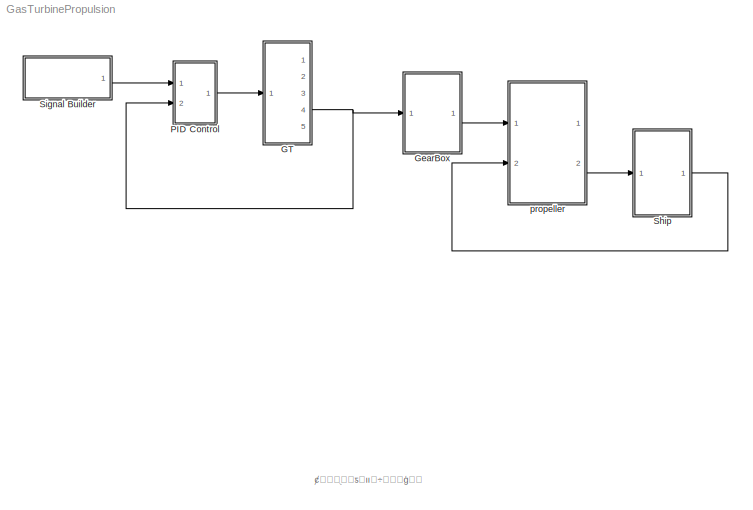
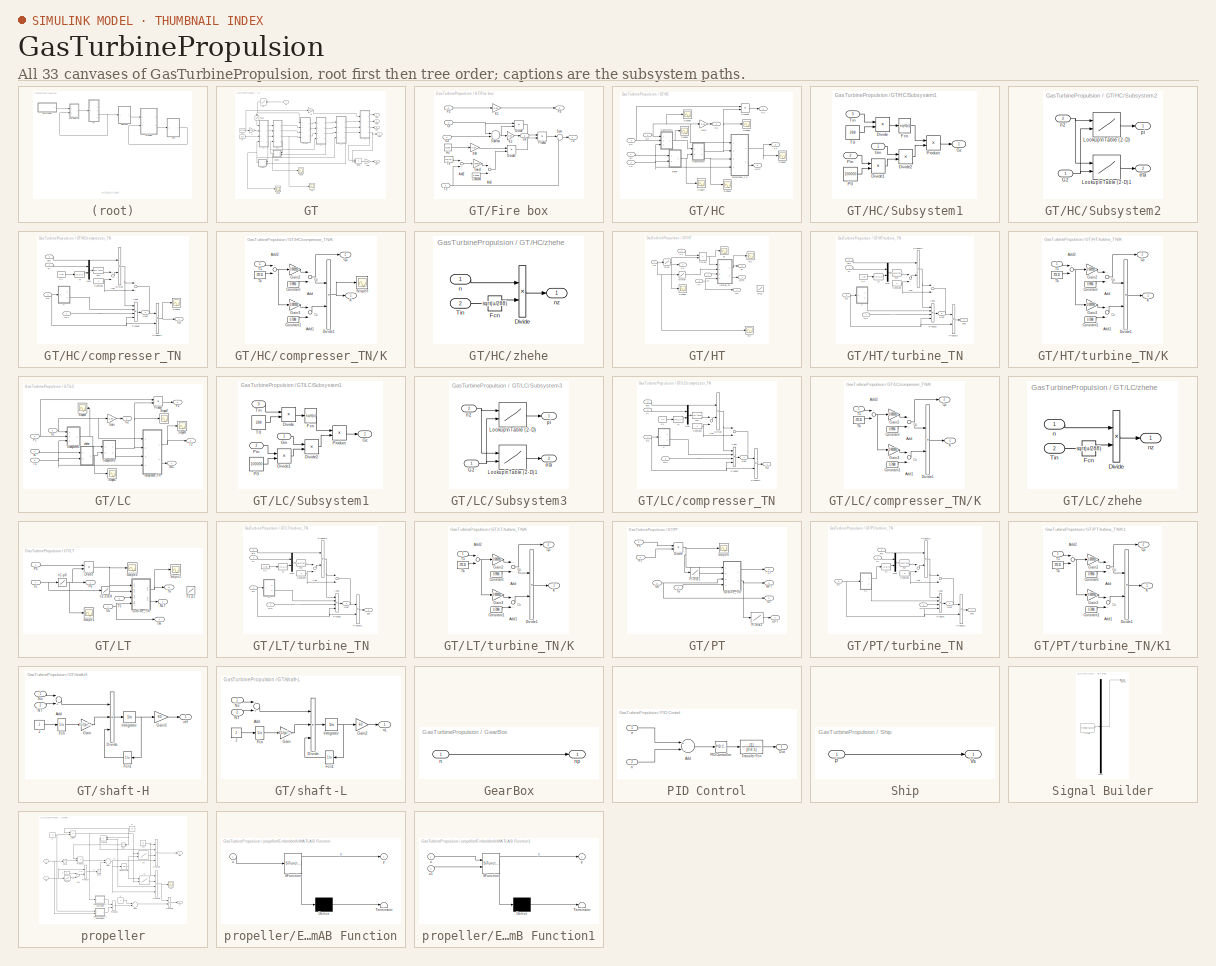
[diagram: thumbnail index - all 33 canvases of the model, root first then tree order]
MODEL GasTurbinePropulsion
KIND model
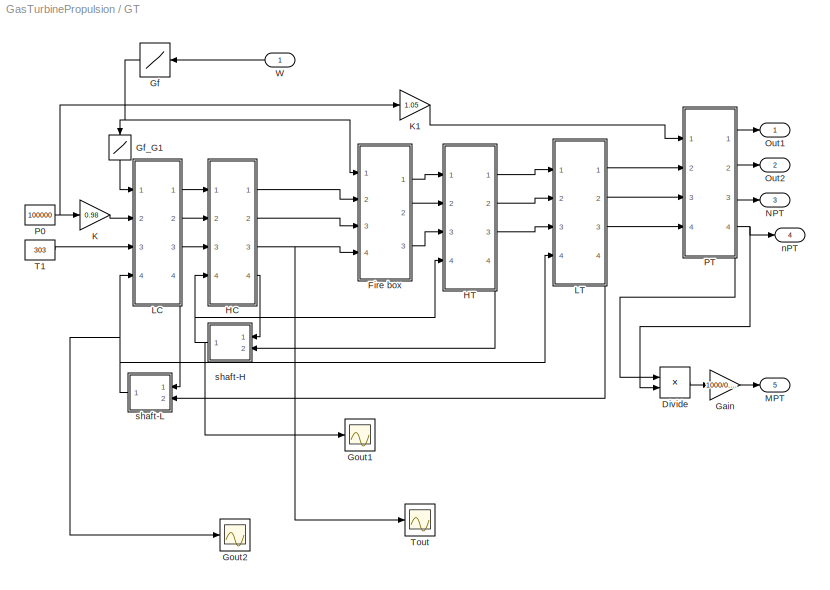
BLOCK [SubSystem] GT
  Ports = [1, 5]
  RequestExecContextInheritance = off
  SID = 364
BLOCK [Product] GT/Divide
  InputSameDT = off
  Inputs = */
  OutDataTypeStr = Inherit: Inherit via internal rule
  Ports = [2, 1]
  RndMeth = Floor
  SID = 367
  SaturateOnIntegerOverflow = off
BLOCK [SubSystem] GT/Fire box
  Ports = [4, 3]
  RequestExecContextInheritance = off
  SID = 368
BLOCK [Sum] GT/Fire box/Add
  InputSameDT = off
  OutDataTypeStr = Inherit: Inherit via internal rule
  Ports = [2, 1]
  SID = 373
  SaturateOnIntegerOverflow = off
BLOCK [Sum] GT/Fire box/Add2
  InputSameDT = off
  Inputs = -+
  OutDataTypeStr = Inherit: Inherit via internal rule
  Ports = [2, 1]
  SID = 374
  SaturateOnIntegerOverflow = off
BLOCK [Constant] GT/Fire box/Constant
  SID = 375
  Value = 0.9956
BLOCK [Product] GT/Fire box/Divide
  InputSameDT = off
  Inputs = */
  OutDataTypeStr = Inherit: Inherit via internal rule
  Ports = [2, 1]
  RndMeth = Floor
  SID = 376
  SaturateOnIntegerOverflow = off
BLOCK [Product] GT/Fire box/Divide1
  InputSameDT = off
  Inputs = */
  OutDataTypeStr = Inherit: Inherit via internal rule
  Ports = [2, 1]
  RndMeth = Floor
  SID = 377
  SaturateOnIntegerOverflow = off
BLOCK [Inport] GT/Fire box/G3
  IconDisplay = Port number
  Port = 2
  SID = 370
BLOCK [Outport] GT/Fire box/G4
  IconDisplay = Port number
  Port = 3
  SID = 389
BLOCK [Gain] GT/Fire box/Gain2
  Gain = 0.000093
  OutDataTypeStr = Inherit: Inherit via internal rule
  ParamDataTypeStr = Inherit: Inherit via internal rule
  SID = 378
  SaturateOnIntegerOverflow = off
BLOCK [Inport] GT/Fire box/Gf
  IconDisplay = Port number
  SID = 369
BLOCK [Constant] GT/Fire box/Hu
  SID = 379
  Value = 42700
BLOCK [Gain] GT/Fire box/K1
  Gain = 0.98
  OutDataTypeStr = Inherit: Inherit via internal rule
  ParamDataTypeStr = Inherit: Inherit via internal rule
  SID = 380
  SaturateOnIntegerOverflow = off
BLOCK [Gain] GT/Fire box/K2
  Gain = 0.99
  OutDataTypeStr = Inherit: Inherit via internal rule
  ParamDataTypeStr = Inherit: Inherit via internal rule
  SID = 381
  SaturateOnIntegerOverflow = off
BLOCK [Inport] GT/Fire box/P3
  IconDisplay = Port number
  Port = 3
  SID = 371
BLOCK [Outport] GT/Fire box/P4
  IconDisplay = Port number
  Port = 2
  SID = 388
BLOCK [Product] GT/Fire box/Product
  InputSameDT = off
  OutDataTypeStr = Inherit: Inherit via internal rule
  Ports = [2, 1]
  SID = 382
  SaturateOnIntegerOverflow = off
BLOCK [Sum] GT/Fire box/Subtract
  InputSameDT = off
  OutDataTypeStr = Inherit: Inherit via internal rule
  Ports = [2, 1]
  SID = 383
  SaturateOnIntegerOverflow = off
BLOCK [Sum] GT/Fire box/Sum
  IconShape = round
  InputSameDT = off
  Inputs = |++
  OutDataTypeStr = Inherit: Inherit via internal rule
  Ports = [2, 1]
  SID = 384
  SaturateOnIntegerOverflow = off
BLOCK [Inport] GT/Fire box/T3
  IconDisplay = Port number
  Port = 4
  SID = 372
BLOCK [Outport] GT/Fire box/T4
  IconDisplay = Port number
  SID = 387
BLOCK [Constant] GT/Fire box/Tk
  SID = 385
  Value = 273.15
BLOCK [Gain] GT/Fire box/etab
  Gain = 0.98
  OutDataTypeStr = Inherit: Inherit via internal rule
  ParamDataTypeStr = Inherit: Inherit via internal rule
  SID = 386
  SaturateOnIntegerOverflow = off
BLOCK [Gain] GT/Gain
  Gain = 1000/0.7355
  OutDataTypeStr = Inherit: Inherit via internal rule
  ParamDataTypeStr = Inherit: Inherit via internal rule
  SID = 390
  SaturateOnIntegerOverflow = off
BLOCK [Lookup] GT/Gf
  InputValues = [0,0.03,0.07,0.09,0.11,0.13,0.17,0.2,0.23,0.26,0.28,0.3,0.32,0.34,0.35,0.38,0.4,0.42,0.44,0.47,0.49,0.5,0.52,0.54,0.55,0.59,0.61,0.64,0.66,0.68,0.7,0.72,0.74,0.77,0.81,0.83,0.85,0.88,0.93,0.95,0.97,1]
  SID = 391
  SaturateOnIntegerOverflow = off
  Table = [0.172,0.236,0.331,0.331,0.366,0.411,0.488,0.536,0.582,0.605,0.644,0.682,0.698,0.728,0.727,0.783,0.783,0.813,0.857,0.886,0.935,0.949,0.95,0.975,0.999,1.022,1.069,1.149,1.153,1.184,1.206,1.233,1.256,1.271,1.325,1.383,1.383,1.439,1.481,1.504,1.52,1.574]
BLOCK [Lookup] GT/Gf_G1
  InputValues = [0.172,0.236,0.331,0.366,0.411,0.488,0.536,0.582,0.605,0.644,0.682,0.698,0.727,0.728,0.783,0.813,0.857,0.886,0.935,0.949,0.95,0.975,0.999,1.022,1.069,1.149,1.153,1.184,1.206,1.233,1.256,1.271,1.325,1.383,1.439,1.481,1.504,1.52,1.574]
  SID = 392
  SaturateOnIntegerOverflow = off
  Table = [20.01, 25.93, 38.77,  43.65, 45.94, 51.85, 54.70, 56.85, 59.03, 61.91, 60.44, 61.58, 62.93, 63.04, 65.71,   67.00, 69.52, 70.63, 73.19, 73.46, 73.44, 73.83, 75.62, 76.39, 78.27, 81.17, 81.50, 82.44, 83.44, 84.31, 85.30, 86.17, 87.93, 89.72, 91.51, 93.65, 94.63, 94.92, 97.64]
BLOCK [Scope] GT/Gout1
  DataFormat = StructureWithTime
  Floating = off
  NumInputPorts = 1
  Ports = [1]
  SID = 393
  SampleTime = 0
  ShowLegends = off
  TimeRange = 10
  ZoomMode = yonly
BLOCK [Scope] GT/Gout2
  DataFormat = StructureWithTime
  Floating = off
  NumInputPorts = 1
  Ports = [1]
  SID = 394
  SampleTime = 0
  SaveName = ScopeData3
  ShowLegends = off
  TimeRange = 10
  ZoomMode = yonly
BLOCK [SubSystem] GT/HC
  Ports = [4, 4]
  RequestExecContextInheritance = off
  SID = 395
BLOCK [Inport] GT/HC/G2
  IconDisplay = Port number
  SID = 396
BLOCK [Outport] GT/HC/G3
  IconDisplay = Port number
  SID = 467
BLOCK [Gain] GT/HC/Gain
  Gain = 0.99
  OutDataTypeStr = Inherit: Inherit via internal rule
  ParamDataTypeStr = Inherit: Inherit via internal rule
  SID = 400
  SaturateOnIntegerOverflow = off
BLOCK [Outport] GT/HC/NHC
  IconDisplay = Port number
  Port = 4
  SID = 470
BLOCK [Inport] GT/HC/P2
  IconDisplay = Port number
  Port = 2
  SID = 397
BLOCK [Outport] GT/HC/P3
  IconDisplay = Port number
  Port = 2
  SID = 468
BLOCK [Product] GT/HC/Product
  InputSameDT = off
  OutDataTypeStr = Inherit: Inherit via internal rule
  Ports = [2, 1]
  SID = 401
  SaturateOnIntegerOverflow = off
BLOCK [Scope] GT/HC/Scope1
  DataFormat = StructureWithTime
  Floating = off
  NumInputPorts = 1
  Ports = [1]
  SID = 402
  SampleTime = 0
  SaveName = ScopeData16
  ShowLegends = off
  YMax = 3127.38
  YMin = 2829.54
BLOCK [Scope] GT/HC/Scope2
  DataFormat = StructureWithTime
  Floating = off
  NumInputPorts = 1
  Ports = [1]
  SID = 403
  SampleTime = 0
  SaveName = ScopeData29
  ShowLegends = off
  YMax = 3127.38
  YMin = 2829.54
BLOCK [Scope] GT/HC/Scope3
  DataFormat = StructureWithTime
  Floating = off
  NumInputPorts = 1
  Ports = [1]
  SID = 404
  SampleTime = 0
  SaveName = ScopeData24
  ShowLegends = off
  YMax = 3127.38
  YMin = 2829.54
BLOCK [Scope] GT/HC/Scope4
  DataFormat = StructureWithTime
  Floating = off
  NumInputPorts = 1
  Ports = [1]
  SID = 405
  SampleTime = 0
  SaveName = ScopeData31
  ShowLegends = off
  YMax = 3127.38
  YMin = 2829.54
BLOCK [Scope] GT/HC/Scope5
  DataFormat = StructureWithTime
  Floating = off
  NumInputPorts = 1
  Ports = [1]
  SID = 406
  SampleTime = 0
  SaveName = ScopeData10
  ShowLegends = off
  YMax = 3127.38
  YMin = 2829.54
BLOCK [Scope] GT/HC/Scope6
  DataFormat = StructureWithTime
  Floating = off
  NumInputPorts = 1
  Ports = [1]
  SID = 407
  SampleTime = 0
  SaveName = ScopeData15
  ShowLegends = off
  YMax = 3127.38
  YMin = 2829.54
BLOCK [SubSystem] GT/HC/Subsystem1
  Ports = [3, 1]
  RequestExecContextInheritance = off
  SID = 408
BLOCK [Product] GT/HC/Subsystem1/Divide
  InputSameDT = off
  Inputs = */
  OutDataTypeStr = Inherit: Inherit via internal rule
  Ports = [2, 1]
  RndMeth = Floor
  SID = 412
  SaturateOnIntegerOverflow = off
BLOCK [Product] GT/HC/Subsystem1/Divide1
  InputSameDT = off
  Inputs = */
  OutDataTypeStr = Inherit: Inherit via internal rule
  Ports = [2, 1]
  RndMeth = Floor
  SID = 413
  SaturateOnIntegerOverflow = off
BLOCK [Product] GT/HC/Subsystem1/Divide2
  InputSameDT = off
  Inputs = */
  OutDataTypeStr = Inherit: Inherit via internal rule
  Ports = [2, 1]
  RndMeth = Floor
  SID = 414
  SaturateOnIntegerOverflow = off
BLOCK [Fcn] GT/HC/Subsystem1/Fcn
  Expr = sqrt(u)
  SID = 415
BLOCK [Inport] GT/HC/Subsystem1/Gin
  IconDisplay = Port number
  SID = 409
BLOCK [Outport] GT/HC/Subsystem1/Gz
  IconDisplay = Port number
  SID = 419
BLOCK [Constant] GT/HC/Subsystem1/P0
  SID = 416
  Value = 100000
BLOCK [Inport] GT/HC/Subsystem1/Pin
  IconDisplay = Port number
  Port = 2
  SID = 410
BLOCK [Product] GT/HC/Subsystem1/Product
  InputSameDT = off
  OutDataTypeStr = Inherit: Inherit via internal rule
  Ports = [2, 1]
  SID = 417
  SaturateOnIntegerOverflow = off
BLOCK [Constant] GT/HC/Subsystem1/T0
  SID = 418
  Value = 288
BLOCK [Inport] GT/HC/Subsystem1/Tin
  IconDisplay = Port number
  Port = 3
  SID = 411
BLOCK [SubSystem] GT/HC/Subsystem2
  Ports = [2, 2]
  RequestExecContextInheritance = off
  SID = 420
BLOCK [Inport] GT/HC/Subsystem2/Gz
  IconDisplay = Port number
  SID = 421
BLOCK [Lookup2D] GT/HC/Subsystem2/Lookup\nTable (2-D)
  ColumnIndex = [12:0.2:29]
  InputSameDT = off
  RowIndex = [6000 6300 6500 6800 7000 7300 7500 7800]
  SID = 423
  SaturateOnIntegerOverflow = off
  Table = [2.4803 2.5510 2.6217 2.6924 2.7630 2.8337 2.9044 2.9751 3.0172 2.9863 2.9541 2.9206 2.8860 2.8500 2.8129 2.7745 2.7349 2.6940 2.6519 2.6085 2.5640 2.5181 2.4711 2.4906 2.5237 2.5573 2.5913 2.6257 2.6605 2.6958 2.7314 2.7675 2.8040 2.8409 2.8783 2.9161 2.9543 2.9929 3.0319 3.0714 3.1112 3.1515 3.1923 3.2334 3.2750 3.3169 3.3593 3.4022 3.4454 3.4891 3.5332 3.5777 3.6226 3.6679 3.7137 3.7599 3.8065 ...<+4441ch>
BLOCK [Lookup2D] GT/HC/Subsystem2/Lookup\nTable (2-D)1
  ColumnIndex = [12:0.2:29]
  InputSameDT = off
  RowIndex = [6000 6300 6500 6800 7000 7300 7500 7800]
  SID = 424
  SaturateOnIntegerOverflow = off
  Table = [0.8450 0.8455 0.8460 0.8465 0.8470 0.8480 0.8490 0.8495 0.8500 0.8510 0.8520 0.8530 0.8540 0.8540 0.8540 0.8525 0.8510 0.8500 0.8490 0.8480 0.8470 0.8460 0.8450 0.8455 0.8460 0.8460 0.8460 0.8470 0.8480 0.8480 0.8480 0.8480 0.8480 0.8485 0.8490 0.8490 0.8490 0.8490 0.8490 0.8490 0.8490 0.8490 0.8490 0.8490 0.8490 0.8490 0.8490 0.8490 0.8490 0.8495 0.8500 0.8500 0.8500 0.8500 0.8500 0.8500 0.8500 ...<+4434ch>
BLOCK [Outport] GT/HC/Subsystem2/eta
  IconDisplay = Port number
  Port = 2
  SID = 426
BLOCK [Inport] GT/HC/Subsystem2/nz
  IconDisplay = Port number
  Port = 2
  SID = 422
BLOCK [Outport] GT/HC/Subsystem2/pi
  IconDisplay = Port number
  SID = 425
BLOCK [Inport] GT/HC/T2
  IconDisplay = Port number
  Port = 3
  SID = 398
BLOCK [Outport] GT/HC/T3
  IconDisplay = Port number
  Port = 3
  SID = 469
BLOCK [SubSystem] GT/HC/compresser_TN
  Ports = [4, 2]
  RequestExecContextInheritance = off
  SID = 427
BLOCK [Sum] GT/HC/compresser_TN/Add
  InputSameDT = off
  Inputs = +-
  OutDataTypeStr = Inherit: Inherit via internal rule
  Ports = [2, 1]
  SID = 432
  SaturateOnIntegerOverflow = off
BLOCK [Sum] GT/HC/compresser_TN/Add1
  InputSameDT = off
  OutDataTypeStr = Inherit: Inherit via internal rule
  Ports = [2, 1]
  SID = 433
  SaturateOnIntegerOverflow = off
BLOCK [Constant] GT/HC/compresser_TN/Constant
  SID = 434
BLOCK [Product] GT/HC/compresser_TN/Divide
  InputSameDT = off
  Inputs = /*
  OutDataTypeStr = Inherit: Inherit via internal rule
  Ports = [2, 1]
  RndMeth = Floor
  SID = 435
  SaturateOnIntegerOverflow = off
BLOCK [Fcn] GT/HC/compresser_TN/Fcn
  Expr = u[1]^(u[2])
  SID = 436
BLOCK [Inport] GT/HC/compresser_TN/Gin
  IconDisplay = Port number
  SID = 428
BLOCK [SubSystem] GT/HC/compresser_TN/K
  Ports = [1, 2]
  RequestExecContextInheritance = off
  SID = 437
BLOCK [Sum] GT/HC/compresser_TN/K/Add
  InputSameDT = off
  OutDataTypeStr = Inherit: Inherit via internal rule
  Ports = [2, 1]
  SID = 439
  SaturateOnIntegerOverflow = off
BLOCK [Sum] GT/HC/compresser_TN/K/Add1
  InputSameDT = off
  OutDataTypeStr = Inherit: Inherit via internal rule
  Ports = [2, 1]
  SID = 440
  SaturateOnIntegerOverflow = off
BLOCK [Sum] GT/HC/compresser_TN/K/Add2
  InputSameDT = off
  Inputs = +-
  OutDataTypeStr = Inherit: Inherit via internal rule
  Ports = [2, 1]
  SID = 441
  SaturateOnIntegerOverflow = off
BLOCK [Constant] GT/HC/compresser_TN/K/Constant
  SID = 442
  Value = 0.9956
BLOCK [Constant] GT/HC/compresser_TN/K/Constant1
  SID = 443
  Value = 0.7088
BLOCK [Outport] GT/HC/compresser_TN/K/Cp
  IconDisplay = Port number
  Port = 2
  SID = 450
BLOCK [Product] GT/HC/compresser_TN/K/Divide1
  InputSameDT = off
  Inputs = */
  OutDataTypeStr = Inherit: Inherit via internal rule
  Ports = [2, 1]
  RndMeth = Floor
  SID = 444
  SaturateOnIntegerOverflow = off
BLOCK [Gain] GT/HC/compresser_TN/K/Gain2
  Gain = 0.000093
  OutDataTypeStr = Inherit: Inherit via internal rule
  ParamDataTypeStr = Inherit: Inherit via internal rule
  SID = 445
  SaturateOnIntegerOverflow = off
BLOCK [Gain] GT/HC/compresser_TN/K/Gain3
  Gain = 0.000093
  OutDataTypeStr = Inherit: Inherit via internal rule
  ParamDataTypeStr = Inherit: Inherit via internal rule
  SID = 446
  SaturateOnIntegerOverflow = off
BLOCK [Outport] GT/HC/compresser_TN/K/K
  IconDisplay = Port number
  SID = 449
BLOCK [Scope] GT/HC/compresser_TN/K/Scope3
  DataFormat = StructureWithTime
  Floating = off
  NumInputPorts = 1
  Ports = [1]
  SID = 447
  SampleTime = 0
  SaveName = ScopeData23
  ShowLegends = off
  YMax = 3127.38
  YMin = 2829.54
BLOCK [Inport] GT/HC/compresser_TN/K/T1
  IconDisplay = Port number
  SID = 438
BLOCK [Constant] GT/HC/compresser_TN/K/Tk
  SID = 448
  Value = 273.15
BLOCK [Constant] GT/HC/compresser_TN/K1
  SID = 453
  Value = 1.35
BLOCK [Mux] GT/HC/compresser_TN/Mux
  DisplayOption = bar
  Inputs = 2
  Ports = [2, 1]
  SID = 454
BLOCK [Outport] GT/HC/compresser_TN/Nout
  IconDisplay = Port number
  Port = 2
  SID = 460
BLOCK [Inport] GT/HC/compresser_TN/Pi
  IconDisplay = Port number
  Port = 2
  SID = 429
BLOCK [Product] GT/HC/compresser_TN/Product
  InputSameDT = off
  Inputs = 4
  OutDataTypeStr = Inherit: Inherit via internal rule
  Ports = [4, 1]
  SID = 455
  SaturateOnIntegerOverflow = off
BLOCK [Product] GT/HC/compresser_TN/Product1
  InputSameDT = off
  OutDataTypeStr = Inherit: Inherit via internal rule
  Ports = [2, 1]
  SID = 456
  SaturateOnIntegerOverflow = off
BLOCK [Scope] GT/HC/compresser_TN/Scope3
  DataFormat = StructureWithTime
  Floating = off
  NumInputPorts = 1
  Ports = [1]
  SID = 457
  SampleTime = 0
  SaveName = ScopeData18
  ShowLegends = off
  YMax = 3127.38
  YMin = 2829.54
BLOCK [Inport] GT/HC/compresser_TN/Tin
  IconDisplay = Port number
  Port = 4
  SID = 431
BLOCK [Outport] GT/HC/compresser_TN/Tout
  IconDisplay = Port number
  SID = 459
BLOCK [Inport] GT/HC/compresser_TN/eta
  IconDisplay = Port number
  Port = 3
  SID = 430
BLOCK [Fcn] GT/HC/compresser_TN/m
  Expr = (u-1)/u
  SID = 458
BLOCK [Inport] GT/HC/nH
  IconDisplay = Port number
  Port = 4
  SID = 399
BLOCK [SubSystem] GT/HC/zhehe
  Ports = [2, 1]
  RequestExecContextInheritance = off
  SID = 461
BLOCK [Product] GT/HC/zhehe/Divide
  InputSameDT = off
  Inputs = */
  OutDataTypeStr = Inherit: Inherit via internal rule
  Ports = [2, 1]
  RndMeth = Floor
  SID = 464
  SaturateOnIntegerOverflow = off
BLOCK [Fcn] GT/HC/zhehe/Fcn
  Expr = sqrt(u/288)
  SID = 465
BLOCK [Inport] GT/HC/zhehe/Tin
  IconDisplay = Port number
  Port = 2
  SID = 463
BLOCK [Inport] GT/HC/zhehe/n
  IconDisplay = Port number
  SID = 462
BLOCK [Outport] GT/HC/zhehe/nz
  IconDisplay = Port number
  SID = 466
BLOCK [SubSystem] GT/HT
  Ports = [4, 4]
  RequestExecContextInheritance = off
  SID = 471
BLOCK [Product] GT/HT/Divide
  InputSameDT = off
  Inputs = */
  OutDataTypeStr = Inherit: Inherit via internal rule
  Ports = [2, 1]
  RndMeth = Floor
  SID = 476
  SaturateOnIntegerOverflow = off
BLOCK [Inport] GT/HT/G4
  IconDisplay = Port number
  Port = 3
  SID = 474
BLOCK [Outport] GT/HT/G5
  IconDisplay = Port number
  SID = 516
BLOCK [Outport] GT/HT/NHT
  IconDisplay = Port number
  Port = 4
  SID = 519
BLOCK [Inport] GT/HT/P4
  IconDisplay = Port number
  Port = 2
  SID = 473
BLOCK [Outport] GT/HT/P5
  IconDisplay = Port number
  Port = 2
  SID = 517
BLOCK [Scope] GT/HT/Scope3
  DataFormat = StructureWithTime
  Floating = off
  NumInputPorts = 1
  Ports = [1]
  SID = 477
  SampleTime = 0
  SaveName = ScopeData34
  ShowLegends = off
  TimeRange = 100
  YMax = 25000
  YMin = 5000
  ZoomMode = yonly
BLOCK [Inport] GT/HT/T4
  IconDisplay = Port number
  SID = 472
BLOCK [Outport] GT/HT/T5
  IconDisplay = Port number
  Port = 3
  SID = 518
BLOCK [Lookup] GT/HT/n2-etaH
  InputValues = [6000 6300 6500 6800 7000 7150 7300 7500 7800]
  SID = 478
  SaturateOnIntegerOverflow = off
  Table = [0.81 0.83 0.85 0.87 0.88 0.87 0.86 0.855 0.85]
BLOCK [Lookup] GT/HT/n2-p1
  InputValues = [6000 6503 6995 7498 8002 8505 8997 9500]
  SID = 479
  SaturateOnIntegerOverflow = off
  Table = [139400 150700 186000 246700 332500 443400 575800 736100]
BLOCK [Lookup] GT/HT/n2-p5
  InputValues = [5832,7212,7282,7644,7752,7853,8033,8092 8211 8392 8430 8452 8670 8767 8960 8999 9073]
  SID = 480
  SaturateOnIntegerOverflow = off
  Table = [154000,269000,296000,361000,391000,419000,476000,494000 534000 596000 609000 616000 684000 719000 806000 814000 831000]
BLOCK [Inport] GT/HT/nH
  IconDisplay = Port number
  Port = 4
  SID = 475
BLOCK [Scope] GT/HT/pi
  DataFormat = StructureWithTime
  Floating = off
  NumInputPorts = 1
  Ports = [1]
  SID = 481
  SampleTime = 0
  SaveName = ScopeData17
  ShowLegends = off
  TimeRange = 100
  YMax = 3127.38
  YMin = 2829.54
BLOCK [Scope] GT/HT/pi1
  DataFormat = StructureWithTime
  Floating = off
  NumInputPorts = 1
  Ports = [1]
  SID = 482
  SampleTime = 0
  SaveName = ScopeData7
  ShowLegends = off
  TimeRange = 100
  YMax = 3127.38
  YMin = 2829.54
BLOCK [Scope] GT/HT/pi2
  DataFormat = StructureWithTime
  Floating = off
  NumInputPorts = 1
  Ports = [1]
  SID = 483
  SampleTime = 0
  SaveName = ScopeData35
  ShowLegends = off
  TimeRange = 100
  YMax = 3127.38
  YMin = 2829.54
BLOCK [SubSystem] GT/HT/turbine_TN
  Ports = [4, 2]
  RequestExecContextInheritance = off
  SID = 484
BLOCK [Sum] GT/HT/turbine_TN/Add
  InputSameDT = off
  Inputs = -+
  OutDataTypeStr = Inherit: Inherit via internal rule
  Ports = [2, 1]
  SID = 489
  SaturateOnIntegerOverflow = off
BLOCK [Sum] GT/HT/turbine_TN/Add1
  InputSameDT = off
  Inputs = -+
  OutDataTypeStr = Inherit: Inherit via internal rule
  Ports = [2, 1]
  SID = 490
  SaturateOnIntegerOverflow = off
BLOCK [Constant] GT/HT/turbine_TN/Constant
  SID = 491
BLOCK [Fcn] GT/HT/turbine_TN/Fcn
  Expr = 1/(u[1]^u[2])
  SID = 492
BLOCK [Inport] GT/HT/turbine_TN/Gin
  IconDisplay = Port number
  Port = 4
  SID = 488
BLOCK [SubSystem] GT/HT/turbine_TN/K
  Ports = [1, 2]
  RequestExecContextInheritance = off
  SID = 493
BLOCK [Sum] GT/HT/turbine_TN/K/Add
  InputSameDT = off
  OutDataTypeStr = Inherit: Inherit via internal rule
  Ports = [2, 1]
  SID = 495
  SaturateOnIntegerOverflow = off
BLOCK [Sum] GT/HT/turbine_TN/K/Add1
  InputSameDT = off
  OutDataTypeStr = Inherit: Inherit via internal rule
  Ports = [2, 1]
  SID = 496
  SaturateOnIntegerOverflow = off
BLOCK [Sum] GT/HT/turbine_TN/K/Add2
  InputSameDT = off
  Inputs = +-
  OutDataTypeStr = Inherit: Inherit via internal rule
  Ports = [2, 1]
  SID = 497
  SaturateOnIntegerOverflow = off
BLOCK [Constant] GT/HT/turbine_TN/K/Constant
  SID = 498
  Value = 0.9956
BLOCK [Constant] GT/HT/turbine_TN/K/Constant1
  SID = 499
  Value = 0.7088
BLOCK [Outport] GT/HT/turbine_TN/K/Cp
  IconDisplay = Port number
  Port = 2
  SID = 505
BLOCK [Product] GT/HT/turbine_TN/K/Divide1
  InputSameDT = off
  Inputs = */
  OutDataTypeStr = Inherit: Inherit via internal rule
  Ports = [2, 1]
  RndMeth = Floor
  SID = 500
  SaturateOnIntegerOverflow = off
BLOCK [Gain] GT/HT/turbine_TN/K/Gain2
  Gain = 0.000093
  OutDataTypeStr = Inherit: Inherit via internal rule
  ParamDataTypeStr = Inherit: Inherit via internal rule
  SID = 501
  SaturateOnIntegerOverflow = off
BLOCK [Gain] GT/HT/turbine_TN/K/Gain3
  Gain = 0.000093
  OutDataTypeStr = Inherit: Inherit via internal rule
  ParamDataTypeStr = Inherit: Inherit via internal rule
  SID = 502
  SaturateOnIntegerOverflow = off
BLOCK [Outport] GT/HT/turbine_TN/K/K
  IconDisplay = Port number
  SID = 504
BLOCK [Inport] GT/HT/turbine_TN/K/T1
  IconDisplay = Port number
  SID = 494
BLOCK [Constant] GT/HT/turbine_TN/K/Tk
  SID = 503
  Value = 273.15
BLOCK [Constant] GT/HT/turbine_TN/K1
  SID = 508
  Value = 1.33
BLOCK [Mux] GT/HT/turbine_TN/Mux
  DisplayOption = bar
  Inputs = 2
  Ports = [2, 1]
  SID = 509
BLOCK [Outport] GT/HT/turbine_TN/Nout
  IconDisplay = Port number
  Port = 2
  SID = 515
BLOCK [Inport] GT/HT/turbine_TN/Pi
  IconDisplay = Port number
  SID = 485
BLOCK [Product] GT/HT/turbine_TN/Product
  InputSameDT = off
  Inputs = 4
  OutDataTypeStr = Inherit: Inherit via internal rule
  Ports = [4, 1]
  SID = 510
  SaturateOnIntegerOverflow = off
BLOCK [Product] GT/HT/turbine_TN/Product1
  InputSameDT = off
  OutDataTypeStr = Inherit: Inherit via internal rule
  Ports = [2, 1]
  SID = 511
  SaturateOnIntegerOverflow = off
BLOCK [Product] GT/HT/turbine_TN/Product2
  InputSameDT = off
  OutDataTypeStr = Inherit: Inherit via internal rule
  Ports = [2, 1]
  SID = 512
  SaturateOnIntegerOverflow = off
BLOCK [Inport] GT/HT/turbine_TN/Tin
  IconDisplay = Port number
  Port = 3
  SID = 487
BLOCK [Outport] GT/HT/turbine_TN/Tout
  IconDisplay = Port number
  SID = 514
BLOCK [Inport] GT/HT/turbine_TN/eta
  IconDisplay = Port number
  Port = 2
  SID = 486
BLOCK [Fcn] GT/HT/turbine_TN/m
  Expr = (u-1)/u
  SID = 513
BLOCK [Gain] GT/K
  Gain = 0.98
  OutDataTypeStr = Inherit: Inherit via internal rule
  ParamDataTypeStr = Inherit: Inherit via internal rule
  SID = 520
  SaturateOnIntegerOverflow = off
BLOCK [Gain] GT/K1
  Gain = 1.05
  OutDataTypeStr = Inherit: Inherit via internal rule
  ParamDataTypeStr = Inherit: Inherit via internal rule
  SID = 521
  SaturateOnIntegerOverflow = off
BLOCK [SubSystem] GT/LC
  Ports = [4, 4]
  RequestExecContextInheritance = off
  SID = 522
BLOCK [Inport] GT/LC/G1
  IconDisplay = Port number
  SID = 523
BLOCK [Outport] GT/LC/G2
  IconDisplay = Port number
  SID = 590
BLOCK [Gain] GT/LC/Gain
  Gain = 0.99
  OutDataTypeStr = Inherit: Inherit via internal rule
  ParamDataTypeStr = Inherit: Inherit via internal rule
  SID = 527
  SaturateOnIntegerOverflow = off
BLOCK [Outport] GT/LC/NLC
  IconDisplay = Port number
  Port = 4
  SID = 593
BLOCK [Inport] GT/LC/P1
  IconDisplay = Port number
  Port = 2
  SID = 524
BLOCK [Outport] GT/LC/P2
  IconDisplay = Port number
  Port = 2
  SID = 591
BLOCK [Product] GT/LC/Product
  InputSameDT = off
  OutDataTypeStr = Inherit: Inherit via internal rule
  Ports = [2, 1]
  SID = 528
  SaturateOnIntegerOverflow = off
BLOCK [Scope] GT/LC/Scope1
  DataFormat = StructureWithTime
  Floating = off
  NumInputPorts = 1
  Ports = [1]
  SID = 529
  SampleTime = 0
  SaveName = ScopeData14
  ShowLegends = off
  YMax = 3127.38
  YMin = 2829.54
BLOCK [Scope] GT/LC/Scope2
  DataFormat = StructureWithTime
  Floating = off
  NumInputPorts = 1
  Ports = [1]
  SID = 530
  SampleTime = 0
  SaveName = ScopeData9
  ShowLegends = off
  YMax = 3127.38
  YMin = 2829.54
BLOCK [Scope] GT/LC/Scope3
  DataFormat = StructureWithTime
  Floating = off
  NumInputPorts = 1
  Ports = [1]
  SID = 531
  SampleTime = 0
  SaveName = ScopeData30
  ShowLegends = off
  YMax = 3127.38
  YMin = 2829.54
BLOCK [Scope] GT/LC/Scope4
  DataFormat = StructureWithTime
  Floating = off
  NumInputPorts = 1
  Ports = [1]
  SID = 532
  SampleTime = 0
  SaveName = ScopeData32
  ShowLegends = off
  TimeRange = 80
  YMax = 30000
  YMin = 5000
  ZoomMode = yonly
BLOCK [SubSystem] GT/LC/Subsystem1
  Ports = [3, 1]
  RequestExecContextInheritance = off
  SID = 533
BLOCK [Product] GT/LC/Subsystem1/Divide
  InputSameDT = off
  Inputs = */
  OutDataTypeStr = Inherit: Inherit via internal rule
  Ports = [2, 1]
  RndMeth = Floor
  SID = 537
  SaturateOnIntegerOverflow = off
BLOCK [Product] GT/LC/Subsystem1/Divide1
  InputSameDT = off
  Inputs = */
  OutDataTypeStr = Inherit: Inherit via internal rule
  Ports = [2, 1]
  RndMeth = Floor
  SID = 538
  SaturateOnIntegerOverflow = off
BLOCK [Product] GT/LC/Subsystem1/Divide2
  InputSameDT = off
  Inputs = */
  OutDataTypeStr = Inherit: Inherit via internal rule
  Ports = [2, 1]
  RndMeth = Floor
  SID = 539
  SaturateOnIntegerOverflow = off
BLOCK [Fcn] GT/LC/Subsystem1/Fcn
  Expr = sqrt(u)
  SID = 540
BLOCK [Inport] GT/LC/Subsystem1/Gin
  IconDisplay = Port number
  SID = 534
BLOCK [Outport] GT/LC/Subsystem1/Gz
  IconDisplay = Port number
  SID = 544
BLOCK [Constant] GT/LC/Subsystem1/P0
  SID = 541
  Value = 100000
BLOCK [Inport] GT/LC/Subsystem1/Pin
  IconDisplay = Port number
  Port = 2
  SID = 535
BLOCK [Product] GT/LC/Subsystem1/Product
  InputSameDT = off
  OutDataTypeStr = Inherit: Inherit via internal rule
  Ports = [2, 1]
  SID = 542
  SaturateOnIntegerOverflow = off
BLOCK [Constant] GT/LC/Subsystem1/T0
  SID = 543
  Value = 288
BLOCK [Inport] GT/LC/Subsystem1/Tin
  IconDisplay = Port number
  Port = 3
  SID = 536
BLOCK [SubSystem] GT/LC/Subsystem3
  Ports = [2, 2]
  RequestExecContextInheritance = off
  SID = 545
BLOCK [Inport] GT/LC/Subsystem3/Gz
  IconDisplay = Port number
  SID = 546
BLOCK [Lookup2D] GT/LC/Subsystem3/Lookup\nTable (2-D)
  ColumnIndex = [20:0.5:100]
  InputSameDT = off
  RowIndex = [4300 5000 5500 6000 6500 7000 7500 8000]
  SID = 548
  SaturateOnIntegerOverflow = off
  Table = [1.1111 1.1471 1.1832 1.2192 1.2552 1.2913 1.3273 1.3633 1.3994 1.4354 1.4714 1.5074 1.5435 1.5795 1.6155 1.6516 1.6876 1.7236 1.8750 1.8749 1.8720 1.8623 1.8457 1.8223 1.7920 1.7549 1.7109 1.6601 1.6024 1.5378 1.4664 1.3881 1.2420 1.2701 1.2983 1.3265 1.3547 1.3828 1.4110 1.4392 1.4673 1.4955 1.5237 1.5519 1.5800 1.6082 1.6364 1.6645 1.6927 1.7209 1.7491 1.7772 1.8054 1.8336 1.8617 1.8899 1.9181 ...<+8634ch>
BLOCK [Lookup2D] GT/LC/Subsystem3/Lookup\nTable (2-D)1
  ColumnIndex = [20:0.5:100]
  InputSameDT = off
  RowIndex = [4300 5000 5500 6000 6500 7000 7500 8000]
  SID = 549
  SaturateOnIntegerOverflow = off
  Table = [0.8303 0.8307 0.8310 0.8314 0.8317 0.8321 0.8324 0.8327 0.8331 0.8335 0.8338 0.8341 0.8345 0.8348 0.8351 0.8355 0.8358 0.8361 0.8371 0.8390 0.8403 0.8412 0.8415 0.8412 0.8405 0.8392 0.8373 0.8350 0.8321 0.8287 0.8247 0.8203 0.8200 0.8200 0.8200 0.8200 0.8200 0.8200 0.8200 0.8200 0.8200 0.8200 0.8200 0.8200 0.8200 0.8200 0.8200 0.8200 0.8200 0.8200 0.8200 0.8200 0.8200 0.8200 0.8200 0.8200 0.8200 ...<+8634ch>
BLOCK [Outport] GT/LC/Subsystem3/eta
  IconDisplay = Port number
  Port = 2
  SID = 551
BLOCK [Inport] GT/LC/Subsystem3/nz
  IconDisplay = Port number
  Port = 2
  SID = 547
BLOCK [Outport] GT/LC/Subsystem3/pi
  IconDisplay = Port number
  SID = 550
BLOCK [Inport] GT/LC/T1
  IconDisplay = Port number
  Port = 3
  SID = 525
BLOCK [Outport] GT/LC/T2
  IconDisplay = Port number
  Port = 3
  SID = 592
BLOCK [SubSystem] GT/LC/compresser_TN
  Ports = [4, 2]
  RequestExecContextInheritance = off
  SID = 552
BLOCK [Sum] GT/LC/compresser_TN/Add
  InputSameDT = off
  Inputs = +-
  OutDataTypeStr = Inherit: Inherit via internal rule
  Ports = [2, 1]
  SID = 557
  SaturateOnIntegerOverflow = off
BLOCK [Sum] GT/LC/compresser_TN/Add1
  InputSameDT = off
  OutDataTypeStr = Inherit: Inherit via internal rule
  Ports = [2, 1]
  SID = 558
  SaturateOnIntegerOverflow = off
BLOCK [Constant] GT/LC/compresser_TN/Constant
  SID = 559
BLOCK [Product] GT/LC/compresser_TN/Divide
  InputSameDT = off
  Inputs = /*
  OutDataTypeStr = Inherit: Inherit via internal rule
  Ports = [2, 1]
  RndMeth = Floor
  SID = 560
  SaturateOnIntegerOverflow = off
BLOCK [Fcn] GT/LC/compresser_TN/Fcn
  Expr = u[1]^(u[2])
  SID = 561
BLOCK [Inport] GT/LC/compresser_TN/Gin
  IconDisplay = Port number
  SID = 553
BLOCK [SubSystem] GT/LC/compresser_TN/K
  Ports = [1, 2]
  RequestExecContextInheritance = off
  SID = 562
BLOCK [Sum] GT/LC/compresser_TN/K/Add
  InputSameDT = off
  OutDataTypeStr = Inherit: Inherit via internal rule
  Ports = [2, 1]
  SID = 564
  SaturateOnIntegerOverflow = off
BLOCK [Sum] GT/LC/compresser_TN/K/Add1
  InputSameDT = off
  OutDataTypeStr = Inherit: Inherit via internal rule
  Ports = [2, 1]
  SID = 565
  SaturateOnIntegerOverflow = off
BLOCK [Sum] GT/LC/compresser_TN/K/Add2
  InputSameDT = off
  Inputs = +-
  OutDataTypeStr = Inherit: Inherit via internal rule
  Ports = [2, 1]
  SID = 566
  SaturateOnIntegerOverflow = off
BLOCK [Constant] GT/LC/compresser_TN/K/Constant
  SID = 567
  Value = 0.9956
BLOCK [Constant] GT/LC/compresser_TN/K/Constant1
  SID = 568
  Value = 0.7088
BLOCK [Outport] GT/LC/compresser_TN/K/Cp
  IconDisplay = Port number
  Port = 2
  SID = 574
BLOCK [Product] GT/LC/compresser_TN/K/Divide1
  InputSameDT = off
  Inputs = */
  OutDataTypeStr = Inherit: Inherit via internal rule
  Ports = [2, 1]
  RndMeth = Floor
  SID = 569
  SaturateOnIntegerOverflow = off
BLOCK [Gain] GT/LC/compresser_TN/K/Gain2
  Gain = 0.000093
  OutDataTypeStr = Inherit: Inherit via internal rule
  ParamDataTypeStr = Inherit: Inherit via internal rule
  SID = 570
  SaturateOnIntegerOverflow = off
BLOCK [Gain] GT/LC/compresser_TN/K/Gain3
  Gain = 0.000093
  OutDataTypeStr = Inherit: Inherit via internal rule
  ParamDataTypeStr = Inherit: Inherit via internal rule
  SID = 571
  SaturateOnIntegerOverflow = off
BLOCK [Outport] GT/LC/compresser_TN/K/K
  IconDisplay = Port number
  SID = 573
BLOCK [Inport] GT/LC/compresser_TN/K/T1
  IconDisplay = Port number
  SID = 563
BLOCK [Constant] GT/LC/compresser_TN/K/Tk
  SID = 572
  Value = 273.15
BLOCK [Constant] GT/LC/compresser_TN/K1
  SID = 577
  Value = 1.4
BLOCK [Mux] GT/LC/compresser_TN/Mux
  DisplayOption = bar
  Inputs = 2
  Ports = [2, 1]
  SID = 578
BLOCK [Outport] GT/LC/compresser_TN/Nout
  IconDisplay = Port number
  Port = 2
  SID = 583
BLOCK [Inport] GT/LC/compresser_TN/Pi
  IconDisplay = Port number
  Port = 2
  SID = 554
BLOCK [Product] GT/LC/compresser_TN/Product
  InputSameDT = off
  Inputs = 4
  OutDataTypeStr = Inherit: Inherit via internal rule
  Ports = [4, 1]
  SID = 579
  SaturateOnIntegerOverflow = off
BLOCK [Product] GT/LC/compresser_TN/Product1
  InputSameDT = off
  OutDataTypeStr = Inherit: Inherit via internal rule
  Ports = [2, 1]
  SID = 580
  SaturateOnIntegerOverflow = off
BLOCK [Inport] GT/LC/compresser_TN/Tin
  IconDisplay = Port number
  Port = 4
  SID = 556
BLOCK [Outport] GT/LC/compresser_TN/Tout
  IconDisplay = Port number
  SID = 582
BLOCK [Inport] GT/LC/compresser_TN/eta
  IconDisplay = Port number
  Port = 3
  SID = 555
BLOCK [Fcn] GT/LC/compresser_TN/m
  Expr = (u-1)/u
  SID = 581
BLOCK [Inport] GT/LC/nL
  IconDisplay = Port number
  Port = 4
  SID = 526
BLOCK [SubSystem] GT/LC/zhehe
  Ports = [2, 1]
  RequestExecContextInheritance = off
  SID = 584
BLOCK [Product] GT/LC/zhehe/Divide
  InputSameDT = off
  Inputs = */
  OutDataTypeStr = Inherit: Inherit via internal rule
  Ports = [2, 1]
  RndMeth = Floor
  SID = 587
  SaturateOnIntegerOverflow = off
BLOCK [Fcn] GT/LC/zhehe/Fcn
  Expr = sqrt(u/288)
  SID = 588
BLOCK [Inport] GT/LC/zhehe/Tin
  IconDisplay = Port number
  Port = 2
  SID = 586
BLOCK [Inport] GT/LC/zhehe/n
  IconDisplay = Port number
  SID = 585
BLOCK [Outport] GT/LC/zhehe/nz
  IconDisplay = Port number
  SID = 589
BLOCK [SubSystem] GT/LT
  Ports = [4, 4]
  RequestExecContextInheritance = off
  SID = 594
BLOCK [Product] GT/LT/Divide
  InputSameDT = off
  Inputs = */
  OutDataTypeStr = Inherit: Inherit via internal rule
  Ports = [2, 1]
  RndMeth = Floor
  SID = 599
  SaturateOnIntegerOverflow = off
BLOCK [Inport] GT/LT/G5
  IconDisplay = Port number
  SID = 595
BLOCK [Outport] GT/LT/G6
  IconDisplay = Port number
  Port = 3
  SID = 640
BLOCK [Outport] GT/LT/NLT
  IconDisplay = Port number
  Port = 4
  SID = 641
BLOCK [Inport] GT/LT/P5
  IconDisplay = Port number
  Port = 2
  SID = 596
BLOCK [Outport] GT/LT/P6
  IconDisplay = Port number
  SID = 638
BLOCK [Scope] GT/LT/Scope1
  DataFormat = StructureWithTime
  Floating = off
  NumInputPorts = 1
  Ports = [1]
  SID = 600
  SampleTime = 0
  SaveName = ScopeData28
  ShowLegends = off
  TimeRange = 100
  YMax = 25000
  YMin = 5000
  ZoomMode = yonly
BLOCK [Scope] GT/LT/Scope2
  DataFormat = StructureWithTime
  Floating = off
  NumInputPorts = 1
  Ports = [1]
  SID = 601
  SampleTime = 0
  SaveName = ScopeData4
  ShowLegends = off
  TimeRange = 100
  YMax = 25000
  YMin = 5000
  ZoomMode = yonly
BLOCK [Scope] GT/LT/Scope3
  DataFormat = StructureWithTime
  Floating = off
  NumInputPorts = 1
  Ports = [1]
  SID = 602
  SampleTime = 0
  SaveName = ScopeData20
  ShowLegends = off
  TimeRange = 100
  YMax = 25000
  YMin = 5000
  ZoomMode = yonly
BLOCK [Inport] GT/LT/T5
  IconDisplay = Port number
  Port = 3
  SID = 597
BLOCK [Outport] GT/LT/T6
  IconDisplay = Port number
  Port = 2
  SID = 639
BLOCK [Lookup] GT/LT/n1-p1
  InputValues = [2849,4651,4850,5410,5586,5742,6024,6092,6102,6211,6385,6425 6435 6609 6698  6732 7015  7080 7185 ]
  SID = 603
  SaturateOnIntegerOverflow = off
  Table = [101000,131000,141000,161000,171000,181000,201000,201000,211000,221000,241000,251000 251000 281000 291000  301000 321000  331000 341000]
BLOCK [Lookup] GT/LT/n1-p6
  InputValues = [2849,4651,4850,5410,5586,5742,6024,6092,6102,6211,6385,6425,6435,6609,6698,6732,7015,7080,7185]
  SID = 604
  SaturateOnIntegerOverflow = off
  Table = [113000,150000,157000,180000,190000,201000,221000,229000,229500,242000,267000,272000,277000,306000,321000,322000,354000,360000,371000]
BLOCK [Lookup] GT/LT/n2-etaH
  InputValues = [4300 5000 5500 6000 6500 7000 7500 8000 9000 9500]
  SID = 605
  SaturateOnIntegerOverflow = off
  Table = [0.82 0.83 0.835 0.84 0.85 0.86 0.875 0.87 0.865 0.86]
BLOCK [Inport] GT/LT/nL
  IconDisplay = Port number
  Port = 4
  SID = 598
BLOCK [SubSystem] GT/LT/turbine_TN
  Ports = [4, 2]
  RequestExecContextInheritance = off
  SID = 606
BLOCK [Sum] GT/LT/turbine_TN/Add
  InputSameDT = off
  Inputs = -+
  OutDataTypeStr = Inherit: Inherit via internal rule
  Ports = [2, 1]
  SID = 611
  SaturateOnIntegerOverflow = off
BLOCK [Sum] GT/LT/turbine_TN/Add1
  InputSameDT = off
  Inputs = -+
  OutDataTypeStr = Inherit: Inherit via internal rule
  Ports = [2, 1]
  SID = 612
  SaturateOnIntegerOverflow = off
BLOCK [Constant] GT/LT/turbine_TN/Constant
  SID = 613
BLOCK [Fcn] GT/LT/turbine_TN/Fcn
  Expr = 1/(u[1]^u[2])
  SID = 614
BLOCK [Inport] GT/LT/turbine_TN/Gin
  IconDisplay = Port number
  Port = 4
  SID = 610
BLOCK [SubSystem] GT/LT/turbine_TN/K
  Ports = [1, 2]
  RequestExecContextInheritance = off
  SID = 615
BLOCK [Sum] GT/LT/turbine_TN/K/Add
  InputSameDT = off
  OutDataTypeStr = Inherit: Inherit via internal rule
  Ports = [2, 1]
  SID = 617
  SaturateOnIntegerOverflow = off
BLOCK [Sum] GT/LT/turbine_TN/K/Add1
  InputSameDT = off
  OutDataTypeStr = Inherit: Inherit via internal rule
  Ports = [2, 1]
  SID = 618
  SaturateOnIntegerOverflow = off
BLOCK [Sum] GT/LT/turbine_TN/K/Add2
  InputSameDT = off
  Inputs = +-
  OutDataTypeStr = Inherit: Inherit via internal rule
  Ports = [2, 1]
  SID = 619
  SaturateOnIntegerOverflow = off
BLOCK [Constant] GT/LT/turbine_TN/K/Constant
  SID = 620
  Value = 0.9956
BLOCK [Constant] GT/LT/turbine_TN/K/Constant1
  SID = 621
  Value = 0.7088
BLOCK [Outport] GT/LT/turbine_TN/K/Cp
  IconDisplay = Port number
  Port = 2
  SID = 627
BLOCK [Product] GT/LT/turbine_TN/K/Divide1
  InputSameDT = off
  Inputs = */
  OutDataTypeStr = Inherit: Inherit via internal rule
  Ports = [2, 1]
  RndMeth = Floor
  SID = 622
  SaturateOnIntegerOverflow = off
BLOCK [Gain] GT/LT/turbine_TN/K/Gain2
  Gain = 0.000093
  OutDataTypeStr = Inherit: Inherit via internal rule
  ParamDataTypeStr = Inherit: Inherit via internal rule
  SID = 623
  SaturateOnIntegerOverflow = off
BLOCK [Gain] GT/LT/turbine_TN/K/Gain3
  Gain = 0.000093
  OutDataTypeStr = Inherit: Inherit via internal rule
  ParamDataTypeStr = Inherit: Inherit via internal rule
  SID = 624
  SaturateOnIntegerOverflow = off
BLOCK [Outport] GT/LT/turbine_TN/K/K
  IconDisplay = Port number
  SID = 626
BLOCK [Inport] GT/LT/turbine_TN/K/T1
  IconDisplay = Port number
  SID = 616
BLOCK [Constant] GT/LT/turbine_TN/K/Tk
  SID = 625
  Value = 273.15
BLOCK [Constant] GT/LT/turbine_TN/K1
  SID = 630
  Value = 1.33
BLOCK [Mux] GT/LT/turbine_TN/Mux
  DisplayOption = bar
  Inputs = 2
  Ports = [2, 1]
  SID = 631
BLOCK [Outport] GT/LT/turbine_TN/Nout
  IconDisplay = Port number
  Port = 2
  SID = 637
BLOCK [Inport] GT/LT/turbine_TN/Pi
  IconDisplay = Port number
  SID = 607
BLOCK [Product] GT/LT/turbine_TN/Product
  InputSameDT = off
  Inputs = 4
  OutDataTypeStr = Inherit: Inherit via internal rule
  Ports = [4, 1]
  SID = 632
  SaturateOnIntegerOverflow = off
BLOCK [Product] GT/LT/turbine_TN/Product1
  InputSameDT = off
  OutDataTypeStr = Inherit: Inherit via internal rule
  Ports = [2, 1]
  SID = 633
  SaturateOnIntegerOverflow = off
BLOCK [Product] GT/LT/turbine_TN/Product2
  InputSameDT = off
  OutDataTypeStr = Inherit: Inherit via internal rule
  Ports = [2, 1]
  SID = 634
  SaturateOnIntegerOverflow = off
BLOCK [Inport] GT/LT/turbine_TN/Tin
  IconDisplay = Port number
  Port = 3
  SID = 609
BLOCK [Outport] GT/LT/turbine_TN/Tout
  IconDisplay = Port number
  SID = 636
BLOCK [Inport] GT/LT/turbine_TN/eta
  IconDisplay = Port number
  Port = 2
  SID = 608
BLOCK [Fcn] GT/LT/turbine_TN/m
  Expr = (u-1)/u
  SID = 635
BLOCK [Outport] GT/MPT
  IconDisplay = Port number
  Port = 5
  SID = 718
BLOCK [Outport] GT/NPT
  IconDisplay = Port number
  Port = 3
  SID = 716
BLOCK [Outport] GT/Out1
  IconDisplay = Port number
  SID = 714
BLOCK [Outport] GT/Out2
  IconDisplay = Port number
  Port = 2
  SID = 715
BLOCK [Constant] GT/P0
  SID = 642
  Value = 100000
BLOCK [SubSystem] GT/PT
  Ports = [4, 4]
  RequestExecContextInheritance = off
  SID = 643
BLOCK [Product] GT/PT/Divide
  InputSameDT = off
  Inputs = */
  OutDataTypeStr = Inherit: Inherit via internal rule
  Ports = [2, 1]
  RndMeth = Floor
  SID = 648
  SaturateOnIntegerOverflow = off
BLOCK [Inport] GT/PT/G6
  IconDisplay = Port number
  Port = 4
  SID = 647
BLOCK [Outport] GT/PT/G7
  IconDisplay = Port number
  SID = 684
BLOCK [Outport] GT/PT/NPT
  IconDisplay = Port number
  Port = 3
  SID = 686
BLOCK [Inport] GT/PT/P6
  IconDisplay = Port number
  Port = 2
  SID = 645
BLOCK [Inport] GT/PT/P7
  IconDisplay = Port number
  SID = 644
BLOCK [Lookup] GT/PT/Pi-eta1
  InputValues = [1,1.11 1.41 1.51 1.81 2.0 2.21 2.41 2.61 2.81]
  SID = 649
  SaturateOnIntegerOverflow = off
  Table = [0.825,0.83 0.85 0.86 0.88 0.90 0.905 0.91 0.905 0.9]
BLOCK [Lookup] GT/PT/Pi-eta2
  InputValues = [307,625,1634,2141,2611,3121,4030,4941,5687,6256,6755,7309,7716,8175,8374,9153,9719,10196,10702,11284,11832,12033,12512,13051,13298,14334,14778,15580,16003,16531,16669,17381,17948,18600,19648,20212,20613,21462,22525,23139,23520,24372]
  SID = 650
  SaturateOnIntegerOverflow = off
  Table = [878,1243,1778,1749,1547,1574,1765,1930,2049,2045,2069,2150,2158,2185,2214,2272,2274,2209,2231,2240,2252,2500,2569,2649,2574,2650,2617,2639,2697,2653,2702,2785,2901,2979,3042,2919,2951,3108,3089,3056,3065,3142]
BLOCK [Scope] GT/PT/Scope6
  DataFormat = StructureWithTime
  Floating = off
  NumInputPorts = 1
  Ports = [1]
  SID = 651
  SampleTime = 0
  SaveName = ScopeData22
  ShowLegends = off
  YMax = 3127.38
  YMin = 2829.54
BLOCK [Inport] GT/PT/T6
  IconDisplay = Port number
  Port = 3
  SID = 646
BLOCK [Outport] GT/PT/T7
  IconDisplay = Port number
  Port = 2
  SID = 685
BLOCK [Outport] GT/PT/nPT
  IconDisplay = Port number
  Port = 4
  SID = 687
BLOCK [SubSystem] GT/PT/turbine_TN
  Ports = [4, 2]
  RequestExecContextInheritance = off
  SID = 652
BLOCK [Sum] GT/PT/turbine_TN/Add
  InputSameDT = off
  Inputs = -+
  OutDataTypeStr = Inherit: Inherit via internal rule
  Ports = [2, 1]
  SID = 657
  SaturateOnIntegerOverflow = off
BLOCK [Sum] GT/PT/turbine_TN/Add1
  InputSameDT = off
  Inputs = -+
  OutDataTypeStr = Inherit: Inherit via internal rule
  Ports = [2, 1]
  SID = 658
  SaturateOnIntegerOverflow = off
BLOCK [Constant] GT/PT/turbine_TN/Constant
  SID = 659
BLOCK [Fcn] GT/PT/turbine_TN/Fcn
  Expr = 1/(u[1]^u[2])
  SID = 660
BLOCK [Inport] GT/PT/turbine_TN/Gin
  IconDisplay = Port number
  Port = 3
  SID = 655
BLOCK [SubSystem] GT/PT/turbine_TN/K1
  Ports = [1, 2]
  RequestExecContextInheritance = off
  SID = 661
BLOCK [Sum] GT/PT/turbine_TN/K1/Add
  InputSameDT = off
  OutDataTypeStr = Inherit: Inherit via internal rule
  Ports = [2, 1]
  SID = 663
  SaturateOnIntegerOverflow = off
BLOCK [Sum] GT/PT/turbine_TN/K1/Add1
  InputSameDT = off
  OutDataTypeStr = Inherit: Inherit via internal rule
  Ports = [2, 1]
  SID = 664
  SaturateOnIntegerOverflow = off
BLOCK [Sum] GT/PT/turbine_TN/K1/Add2
  InputSameDT = off
  Inputs = +-
  OutDataTypeStr = Inherit: Inherit via internal rule
  Ports = [2, 1]
  SID = 665
  SaturateOnIntegerOverflow = off
BLOCK [Constant] GT/PT/turbine_TN/K1/Constant
  SID = 666
  Value = 0.9956
BLOCK [Constant] GT/PT/turbine_TN/K1/Constant1
  SID = 667
  Value = 0.7088
BLOCK [Outport] GT/PT/turbine_TN/K1/Cp
  IconDisplay = Port number
  Port = 2
  SID = 673
BLOCK [Product] GT/PT/turbine_TN/K1/Divide1
  InputSameDT = off
  Inputs = */
  OutDataTypeStr = Inherit: Inherit via internal rule
  Ports = [2, 1]
  RndMeth = Floor
  SID = 668
  SaturateOnIntegerOverflow = off
BLOCK [Gain] GT/PT/turbine_TN/K1/Gain2
  Gain = 0.000093
  OutDataTypeStr = Inherit: Inherit via internal rule
  ParamDataTypeStr = Inherit: Inherit via internal rule
  SID = 669
  SaturateOnIntegerOverflow = off
BLOCK [Gain] GT/PT/turbine_TN/K1/Gain3
  Gain = 0.000093
  OutDataTypeStr = Inherit: Inherit via internal rule
  ParamDataTypeStr = Inherit: Inherit via internal rule
  SID = 670
  SaturateOnIntegerOverflow = off
BLOCK [Outport] GT/PT/turbine_TN/K1/K
  IconDisplay = Port number
  SID = 672
BLOCK [Inport] GT/PT/turbine_TN/K1/T1
  IconDisplay = Port number
  SID = 662
BLOCK [Constant] GT/PT/turbine_TN/K1/Tk
  SID = 671
  Value = 273.15
BLOCK [Mux] GT/PT/turbine_TN/Mux
  DisplayOption = bar
  Inputs = 2
  Ports = [2, 1]
  SID = 676
BLOCK [Outport] GT/PT/turbine_TN/Nout
  IconDisplay = Port number
  Port = 2
  SID = 682
BLOCK [Inport] GT/PT/turbine_TN/Pi
  IconDisplay = Port number
  SID = 653
BLOCK [Product] GT/PT/turbine_TN/Product
  InputSameDT = off
  Inputs = 4
  OutDataTypeStr = Inherit: Inherit via internal rule
  Ports = [4, 1]
  SID = 677
  SaturateOnIntegerOverflow = off
BLOCK [Product] GT/PT/turbine_TN/Product1
  InputSameDT = off
  OutDataTypeStr = Inherit: Inherit via internal rule
  Ports = [2, 1]
  SID = 678
  SaturateOnIntegerOverflow = off
BLOCK [Product] GT/PT/turbine_TN/Product2
  InputSameDT = off
  OutDataTypeStr = Inherit: Inherit via internal rule
  Ports = [2, 1]
  SID = 679
  SaturateOnIntegerOverflow = off
BLOCK [Inport] GT/PT/turbine_TN/Tin
  IconDisplay = Port number
  Port = 4
  SID = 656
BLOCK [Outport] GT/PT/turbine_TN/Tout
  IconDisplay = Port number
  SID = 681
BLOCK [Inport] GT/PT/turbine_TN/eta
  IconDisplay = Port number
  Port = 2
  SID = 654
BLOCK [Fcn] GT/PT/turbine_TN/m
  Expr = (u-1)/u
  SID = 680
BLOCK [Constant] GT/T1
  SID = 688
  Value = 303
BLOCK [Scope] GT/Tout
  DataFormat = StructureWithTime
  Floating = off
  NumInputPorts = 1
  Ports = [1]
  SID = 689
  SampleTime = 0
  SaveName = ScopeData1
  SaveToWorkspace = on
  ShowLegends = off
  TimeRange = 200
  YMax = 790
  YMin = 740
  ZoomMode = yonly
BLOCK [Inport] GT/W
  IconDisplay = Port number
  SID = 365
BLOCK [Outport] GT/nPT
  IconDisplay = Port number
  Port = 4
  SID = 717
BLOCK [SubSystem] GT/shaft-H
  Ports = [2, 1]
  RequestExecContextInheritance = off
  SID = 690
BLOCK [Sum] GT/shaft-H/Add
  InputSameDT = off
  Inputs = -+
  OutDataTypeStr = Inherit: Inherit via internal rule
  Ports = [2, 1]
  SID = 693
  SaturateOnIntegerOverflow = off
BLOCK [Product] GT/shaft-H/Divide
  InputSameDT = off
  Inputs = 3
  OutDataTypeStr = Inherit: Inherit via internal rule
  Ports = [3, 1]
  RndMeth = Floor
  SID = 694
  SaturateOnIntegerOverflow = off
BLOCK [Fcn] GT/shaft-H/Fcn
  Expr = 1/u
  SID = 695
BLOCK [Fcn] GT/shaft-H/Fcn1
  Expr = 1/u
  SID = 696
BLOCK [Gain] GT/shaft-H/Gain
  Gain = 15/(pi*pi)
  OutDataTypeStr = Inherit: Inherit via internal rule
  ParamDataTypeStr = Inherit: Inherit via internal rule
  SID = 697
  SaturateOnIntegerOverflow = off
BLOCK [Gain] GT/shaft-H/Gain3
  Gain = 60
  OutDataTypeStr = Inherit: Inherit via internal rule
  ParamDataTypeStr = Inherit: Inherit via internal rule
  SID = 698
  SaturateOnIntegerOverflow = off
BLOCK [Integrator] GT/shaft-H/Integrator
  InitialCondition = 143.58
  Ports = [1, 1]
  SID = 699
BLOCK [Constant] GT/shaft-H/J
  SID = 700
  Value = J
BLOCK [Inport] GT/shaft-H/NT
  IconDisplay = Port number
  Port = 2
  SID = 692
BLOCK [Inport] GT/shaft-H/Nc
  IconDisplay = Port number
  SID = 691
BLOCK [Outport] GT/shaft-H/nH
  IconDisplay = Port number
  SID = 701
BLOCK [SubSystem] GT/shaft-L
  Ports = [2, 1]
  RequestExecContextInheritance = off
  SID = 702
BLOCK [Sum] GT/shaft-L/Add
  InputSameDT = off
  Inputs = -+
  OutDataTypeStr = Inherit: Inherit via internal rule
  Ports = [2, 1]
  SID = 705
  SaturateOnIntegerOverflow = off
BLOCK [Product] GT/shaft-L/Divide
  InputSameDT = off
  Inputs = 3
  OutDataTypeStr = Inherit: Inherit via internal rule
  Ports = [3, 1]
  RndMeth = Floor
  SID = 706
  SaturateOnIntegerOverflow = off
BLOCK [Fcn] GT/shaft-L/Fcn
  Expr = 1/u
  SID = 707
BLOCK [Fcn] GT/shaft-L/Fcn1
  Expr = 1/u
  SID = 708
BLOCK [Gain] GT/shaft-L/Gain
  Gain = 15/(pi*pi)
  OutDataTypeStr = Inherit: Inherit via internal rule
  ParamDataTypeStr = Inherit: Inherit via internal rule
  SID = 709
  SaturateOnIntegerOverflow = off
BLOCK [Gain] GT/shaft-L/Gain2
  Gain = 60
  OutDataTypeStr = Inherit: Inherit via internal rule
  ParamDataTypeStr = Inherit: Inherit via internal rule
  SID = 710
  SaturateOnIntegerOverflow = off
BLOCK [Integrator] GT/shaft-L/Integrator
  InitialCondition = 105.9
  Ports = [1, 1]
  SID = 711
BLOCK [Constant] GT/shaft-L/J
  SID = 712
  Value = J
BLOCK [Inport] GT/shaft-L/NT
  IconDisplay = Port number
  Port = 2
  SID = 704
BLOCK [Inport] GT/shaft-L/Nc
  IconDisplay = Port number
  SID = 703
BLOCK [Outport] GT/shaft-L/nL
  IconDisplay = Port number
  SID = 713
BLOCK [SubSystem] GearBox
  Ports = [1, 1]
  RequestExecContextInheritance = off
  SID = 762
BLOCK [Inport] GearBox/n
  IconDisplay = Port number
  SID = 763
BLOCK [Outport] GearBox/np
  IconDisplay = Port number
  SID = 764
BLOCK [SubSystem] PID Control
  Ports = [2, 1]
  RequestExecContextInheritance = off
  SID = 720
BLOCK [Sum] PID Control/Add
  InputSameDT = off
  Inputs = +-
  OutDataTypeStr = Inherit: Inherit via internal rule
  Ports = [2, 1]
  SID = 723
  SaturateOnIntegerOverflow = off
BLOCK [Outport] PID Control/Out
  IconDisplay = Port number
  SID = 726
BLOCK [Reference] PID Control/PID Controller  REF=simulink_need_slupdate/PID Controller
  D = 0
  I = 10
  P = 0.006
  Ports = [1, 1]
  SID = 724
  SourceBlock = simulink_need_slupdate/PID Controller
  SourceType = PID Controller
BLOCK [TransferFcn] PID Control/Transfer Fcn
  Denominator = [0.6 1]
  SID = 725
BLOCK [Inport] PID Control/n
  IconDisplay = Port number
  SID = 721
BLOCK [Inport] PID Control/n'
  IconDisplay = Port number
  Port = 2
  SID = 722
BLOCK [SubSystem] Ship
  Ports = [1, 1]
  RequestExecContextInheritance = off
  SID = 765
BLOCK [Inport] Ship/P
  IconDisplay = Port number
  SID = 766
BLOCK [Outport] Ship/Vs
  IconDisplay = Port number
  SID = 767
BLOCK [SubSystem] Signal Builder
  ClipboardFcn = sigbuilder_block('clipboard');
  CloseFcn = sigbuilder_block('close');
  ContinueFcn = sigbuilder_block('continue');
  CopyFcn = sigbuilder_block('copy');
  DeleteFcn = sigbuilder_block('delete');
  LoadFcn = sigbuilder_block('load');
  MaskHideContents = on
  ModelCloseFcn = sigbuilder_block('modelClose');
  NameChangeFcn = sigbuilder_block('namechange');
  OpenFcn = sigbuilder_block('open',[319.5 115.5 544.5 390.75 ]);
  PauseFcn = sigbuilder_block('pause');
  Ports = [0, 1]
  PreSaveFcn = sigbuilder_block('preSave');
  RequestExecContextInheritance = off
  SID = 768
  StartFcn = sigbuilder_block('start');
  StopFcn = sigbuilder_block('stop');
  Tag = STV Subsys
BLOCK [Demux] Signal Builder/Demux
  Outputs = 1
  Ports = [1, 1]
  SID = 768:1
  Tag = STV Demux
BLOCK [FromWorkspace] Signal Builder/FromWs
  SID = 768:2
  SampleTime = 0
  SigBuilderData = DataTag0
  Tag = STV FromWs
  VariableName = tuvar
  VnvData = DataTag1
  ZeroCross = on
BLOCK [Outport] Signal Builder/Signal 1
  IconDisplay = Port number
  SID = 768:3
  Tag = STV Outport
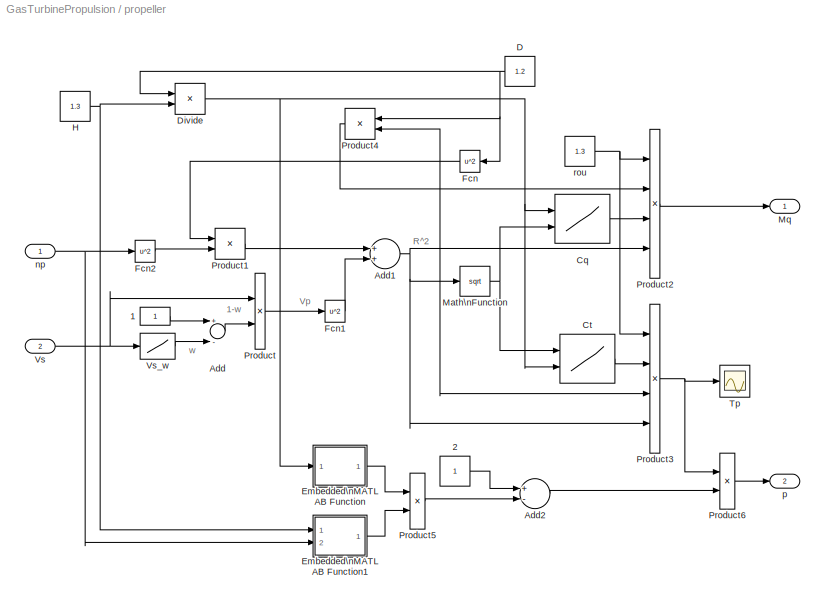
BLOCK [SubSystem] propeller
  Ports = [2, 2]
  RequestExecContextInheritance = off
  SID = 727
BLOCK [Constant] propeller/1
  SID = 730
BLOCK [Constant] propeller/2
  SID = 731
BLOCK [Sum] propeller/Add
  InputSameDT = off
  Inputs = +-
  OutDataTypeStr = Inherit: Inherit via internal rule
  Ports = [2, 1]
  SID = 732
  SaturateOnIntegerOverflow = off
BLOCK [Sum] propeller/Add1
  InputSameDT = off
  OutDataTypeStr = Inherit: Inherit via internal rule
  Ports = [2, 1]
  SID = 733
  SaturateOnIntegerOverflow = off
BLOCK [Sum] propeller/Add2
  InputSameDT = off
  Inputs = +-
  OutDataTypeStr = Inherit: Inherit via internal rule
  Ports = [2, 1]
  SID = 734
  SaturateOnIntegerOverflow = off
BLOCK [Lookup2D] propeller/Cq
  ColumnIndex = [1:3]
  InputSameDT = off
  RowIndex = [1:3]
  SID = 735
  SaturateOnIntegerOverflow = off
  Table = [4 5 6;16 19 20;10 18 23]
BLOCK [Lookup2D] propeller/Ct
  ColumnIndex = [1:3]
  InputSameDT = off
  RowIndex = [1:3]
  SID = 736
  SaturateOnIntegerOverflow = off
  Table = [4 5 6;16 19 20;10 18 23]
BLOCK [Constant] propeller/D
  SID = 737
  Value = 1.2
BLOCK [Product] propeller/Divide
  InputSameDT = off
  Inputs = /*
  OutDataTypeStr = Inherit: Inherit via internal rule
  Ports = [2, 1]
  RndMeth = Floor
  SID = 738
  SaturateOnIntegerOverflow = off
BLOCK [SubSystem] propeller/Embedded\nMATLAB Function
  ErrorFcn = Stateflow.Translate.translate
  PermitHierarchicalResolution = ExplicitOnly
  Ports = [1, 1]
  RequestExecContextInheritance = off
  SFBlockType = MATLAB Function
  SID = 739
  TreatAsAtomicUnit = on
BLOCK [Demux] propeller/Embedded\nMATLAB Function/ Demux 
  Outputs = 1
  Ports = [1, 1]
  SID = 739::7
BLOCK [S-Function] propeller/Embedded\nMATLAB Function/ SFunction 
  EnableBusSupport = off
  FunctionName = sf_sfun
  PortCounts = [1 2]
  Ports = [1, 2]
  SID = 739::6
  Tag = Stateflow S-Function GasTurbinePropulsion 2
BLOCK [Terminator] propeller/Embedded\nMATLAB Function/ Terminator 
  SID = 739::8
BLOCK [Inport] propeller/Embedded\nMATLAB Function/u
  IconDisplay = Port number
  SID = 739::1
BLOCK [Outport] propeller/Embedded\nMATLAB Function/y
  IconDisplay = Port number
  SID = 739::5
BLOCK [SubSystem] propeller/Embedded\nMATLAB Function1
  ErrorFcn = Stateflow.Translate.translate
  PermitHierarchicalResolution = ExplicitOnly
  Ports = [2, 1]
  RequestExecContextInheritance = off
  SFBlockType = MATLAB Function
  SID = 740
  TreatAsAtomicUnit = on
BLOCK [Demux] propeller/Embedded\nMATLAB Function1/ Demux 
  Outputs = 1
  Ports = [1, 1]
  SID = 740::8
BLOCK [S-Function] propeller/Embedded\nMATLAB Function1/ SFunction 
  EnableBusSupport = off
  FunctionName = sf_sfun
  PortCounts = [2 2]
  Ports = [2, 2]
  SID = 740::7
  Tag = Stateflow S-Function GasTurbinePropulsion 1
BLOCK [Terminator] propeller/Embedded\nMATLAB Function1/ Terminator 
  SID = 740::9
BLOCK [Inport] propeller/Embedded\nMATLAB Function1/u
  IconDisplay = Port number
  SID = 740::1
BLOCK [Inport] propeller/Embedded\nMATLAB Function1/u1
  IconDisplay = Port number
  Port = 2
  SID = 740::2
BLOCK [Outport] propeller/Embedded\nMATLAB Function1/y
  IconDisplay = Port number
  SID = 740::6
BLOCK [Fcn] propeller/Fcn
  Expr = u^2
  SID = 741
BLOCK [Fcn] propeller/Fcn1
  Expr = u^2
  SID = 742
BLOCK [Fcn] propeller/Fcn2
  Expr = u^2
  SID = 743
BLOCK [Constant] propeller/H
  SID = 744
  Value = 1.3
BLOCK [Math] propeller/Math\nFunction
  Operator = sqrt
  Ports = [1, 1]
  SID = 745
BLOCK [Outport] propeller/Mq
  IconDisplay = Port number
  SID = 756
BLOCK [Product] propeller/Product
  InputSameDT = off
  OutDataTypeStr = Inherit: Inherit via internal rule
  Ports = [2, 1]
  SID = 746
  SaturateOnIntegerOverflow = off
BLOCK [Product] propeller/Product1
  InputSameDT = off
  OutDataTypeStr = Inherit: Inherit via internal rule
  Ports = [2, 1]
  SID = 747
  SaturateOnIntegerOverflow = off
BLOCK [Product] propeller/Product2
  InputSameDT = off
  Inputs = 4
  OutDataTypeStr = Inherit: Inherit via internal rule
  Ports = [4, 1]
  SID = 748
  SaturateOnIntegerOverflow = off
BLOCK [Product] propeller/Product3
  InputSameDT = off
  Inputs = 4
  OutDataTypeStr = Inherit: Inherit via internal rule
  Ports = [4, 1]
  SID = 749
  SaturateOnIntegerOverflow = off
BLOCK [Product] propeller/Product4
  InputSameDT = off
  OutDataTypeStr = Inherit: Inherit via internal rule
  Ports = [2, 1]
  SID = 750
  SaturateOnIntegerOverflow = off
BLOCK [Product] propeller/Product5
  InputSameDT = off
  OutDataTypeStr = Inherit: Inherit via internal rule
  Ports = [2, 1]
  SID = 751
  SaturateOnIntegerOverflow = off
BLOCK [Product] propeller/Product6
  InputSameDT = off
  OutDataTypeStr = Inherit: Inherit via internal rule
  Ports = [2, 1]
  SID = 752
  SaturateOnIntegerOverflow = off
BLOCK [Scope] propeller/Tp
  DataFormat = StructureWithTime
  Floating = off
  NumInputPorts = 1
  Ports = [1]
  SID = 753
  SampleTime = 0
  SaveName = ScopeData1
  ShowLegends = off
BLOCK [Inport] propeller/Vs
  IconDisplay = Port number
  Port = 2
  SID = 729
BLOCK [Lookup] propeller/Vs_w
  InputValues = [-5:5]
  SID = 754
  SaturateOnIntegerOverflow = off
  Table = tanh([-5:5])
BLOCK [Inport] propeller/np
  IconDisplay = Port number
  SID = 728
BLOCK [Outport] propeller/p
  IconDisplay = Port number
  Port = 2
  SID = 757
BLOCK [Constant] propeller/rou
  SID = 755
  Value = 1.3
ANNOTATION (root): \n \n ȼ���ֻ��ƽ�װ�÷���ģ��
ANNOTATION GT/HC/compresser_TN/K: Cp
ANNOTATION GT/HC/compresser_TN/K: Cv
ANNOTATION GT/HT/turbine_TN/K: Cp
ANNOTATION GT/HT/turbine_TN/K: Cv
ANNOTATION GT/LC/compresser_TN/K: Cp
ANNOTATION GT/LC/compresser_TN/K: Cv
ANNOTATION GT/LT/turbine_TN/K: Cp
ANNOTATION GT/LT/turbine_TN/K: Cv
ANNOTATION GT/PT/turbine_TN/K1: Cp
ANNOTATION GT/PT/turbine_TN/K1: Cv
ANNOTATION propeller: 1-w
ANNOTATION propeller: R^2
ANNOTATION propeller: Vp
ANNOTATION propeller: w
LINE GT/Divide:1 -> GT/Gain:1
LINE GT/Fire box/Add2:1 -> GT/Fire box/Gain2:1
LINE GT/Fire box/Add:1 -> GT/Fire box/Divide1:2
LINE GT/Fire box/Constant:1 -> GT/Fire box/Add:2
LINE GT/Fire box/Divide1:1 -> GT/Fire box/Product:2
LINE GT/Fire box/Divide:1 -> GT/Fire box/Product:1
LINE GT/Fire box/G3:1 -> GT/Fire box/Subtract:2
LINE GT/Fire box/Gain2:1 -> GT/Fire box/Add:1
NET GT/Fire box/Gf:1 -> GT/Fire box/Divide:1, GT/Fire box/Subtract:1
LINE GT/Fire box/Hu:1 -> GT/Fire box/etab:1
LINE GT/Fire box/K1:1 -> GT/Fire box/P4:1
LINE GT/Fire box/K2:1 -> GT/Fire box/G4:1
LINE GT/Fire box/P3:1 -> GT/Fire box/K1:1
LINE GT/Fire box/Product:1 -> GT/Fire box/Sum:1
NET GT/Fire box/Subtract:1 -> GT/Fire box/Divide:2, GT/Fire box/K2:1
LINE GT/Fire box/Sum:1 -> GT/Fire box/T4:1
NET GT/Fire box/T3:1 -> GT/Fire box/Add2:2, GT/Fire box/Sum:2
LINE GT/Fire box/Tk:1 -> GT/Fire box/Add2:1
LINE GT/Fire box/etab:1 -> GT/Fire box/Divide1:1
LINE GT/Fire box:1 -> GT/HT:1
LINE GT/Fire box:2 -> GT/HT:2
LINE GT/Fire box:3 -> GT/HT:3
LINE GT/Gain:1 -> GT/MPT:1
NET GT/Gf:1 -> GT/Fire box:1, GT/Gf_G1:1
LINE GT/Gf_G1:1 -> GT/LC:1
NET GT/HC/G2:1 -> GT/HC/Gain:1, GT/HC/Scope6:1, GT/HC/Subsystem1:1, GT/HC/compresser_TN:1
LINE GT/HC/Gain:1 -> GT/HC/G3:1
NET GT/HC/P2:1 -> GT/HC/Product:1, GT/HC/Subsystem1:2
LINE GT/HC/Product:1 -> GT/HC/P3:1
LINE GT/HC/Subsystem1/Divide1:1 -> GT/HC/Subsystem1/Divide2:2
LINE GT/HC/Subsystem1/Divide2:1 -> GT/HC/Subsystem1/Product:2
LINE GT/HC/Subsystem1/Divide:1 -> GT/HC/Subsystem1/Fcn:1
LINE GT/HC/Subsystem1/Fcn:1 -> GT/HC/Subsystem1/Product:1
LINE GT/HC/Subsystem1/Gin:1 -> GT/HC/Subsystem1/Divide2:1
LINE GT/HC/Subsystem1/P0:1 -> GT/HC/Subsystem1/Divide1:2
LINE GT/HC/Subsystem1/Pin:1 -> GT/HC/Subsystem1/Divide1:1
LINE GT/HC/Subsystem1/Product:1 -> GT/HC/Subsystem1/Gz:1
LINE GT/HC/Subsystem1/T0:1 -> GT/HC/Subsystem1/Divide:2
LINE GT/HC/Subsystem1/Tin:1 -> GT/HC/Subsystem1/Divide:1
NET GT/HC/Subsystem1:1 -> GT/HC/Scope1:1, GT/HC/Subsystem2:1
NET GT/HC/Subsystem2/Gz:1 -> GT/HC/Subsystem2/Lookup\nTable (2-D)1:2, GT/HC/Subsystem2/Lookup\nTable (2-D):2
LINE GT/HC/Subsystem2/Lookup\nTable (2-D)1:1 -> GT/HC/Subsystem2/eta:1
LINE GT/HC/Subsystem2/Lookup\nTable (2-D):1 -> GT/HC/Subsystem2/pi:1
NET GT/HC/Subsystem2/nz:1 -> GT/HC/Subsystem2/Lookup\nTable (2-D)1:1, GT/HC/Subsystem2/Lookup\nTable (2-D):1
NET GT/HC/Subsystem2:1 -> GT/HC/Product:2, GT/HC/Scope5:1, GT/HC/compresser_TN:2
NET GT/HC/Subsystem2:2 -> GT/HC/Scope3:1, GT/HC/compresser_TN:3
NET GT/HC/T2:1 -> GT/HC/Subsystem1:3, GT/HC/compresser_TN:4, GT/HC/zhehe:2
LINE GT/HC/compresser_TN/Add1:1 -> GT/HC/compresser_TN/Product1:1
LINE GT/HC/compresser_TN/Add:1 -> GT/HC/compresser_TN/Divide:2
NET GT/HC/compresser_TN/Constant:1 -> GT/HC/compresser_TN/Add1:2, GT/HC/compresser_TN/Add:2
NET GT/HC/compresser_TN/Divide:1 -> GT/HC/compresser_TN/Add1:1, GT/HC/compresser_TN/Product:1
LINE GT/HC/compresser_TN/Fcn:1 -> GT/HC/compresser_TN/Add:1
LINE GT/HC/compresser_TN/Gin:1 -> GT/HC/compresser_TN/Product:3
LINE GT/HC/compresser_TN/K/Add1:1 -> GT/HC/compresser_TN/K/Divide1:2
NET GT/HC/compresser_TN/K/Add2:1 -> GT/HC/compresser_TN/K/Gain2:1, GT/HC/compresser_TN/K/Gain3:1
NET GT/HC/compresser_TN/K/Add:1 -> GT/HC/compresser_TN/K/Cp:1, GT/HC/compresser_TN/K/Divide1:1
LINE GT/HC/compresser_TN/K/Constant1:1 -> GT/HC/compresser_TN/K/Add1:2
LINE GT/HC/compresser_TN/K/Constant:1 -> GT/HC/compresser_TN/K/Add:2
NET GT/HC/compresser_TN/K/Divide1:1 -> GT/HC/compresser_TN/K/K:1, GT/HC/compresser_TN/K/Scope3:1
LINE GT/HC/compresser_TN/K/Gain2:1 -> GT/HC/compresser_TN/K/Add:1
LINE GT/HC/compresser_TN/K/Gain3:1 -> GT/HC/compresser_TN/K/Add1:1
LINE GT/HC/compresser_TN/K/T1:1 -> GT/HC/compresser_TN/K/Add2:1
LINE GT/HC/compresser_TN/K/Tk:1 -> GT/HC/compresser_TN/K/Add2:2
LINE GT/HC/compresser_TN/K1:1 -> GT/HC/compresser_TN/m:1
LINE GT/HC/compresser_TN/K:2 -> GT/HC/compresser_TN/Product:2
LINE GT/HC/compresser_TN/Mux:1 -> GT/HC/compresser_TN/Fcn:1
LINE GT/HC/compresser_TN/Pi:1 -> GT/HC/compresser_TN/Mux:1
NET GT/HC/compresser_TN/Product1:1 -> GT/HC/compresser_TN/Scope3:1, GT/HC/compresser_TN/Tout:1
LINE GT/HC/compresser_TN/Product:1 -> GT/HC/compresser_TN/Nout:1
NET GT/HC/compresser_TN/Tin:1 -> GT/HC/compresser_TN/K:1, GT/HC/compresser_TN/Product1:2, GT/HC/compresser_TN/Product:4
LINE GT/HC/compresser_TN/eta:1 -> GT/HC/compresser_TN/Divide:1
LINE GT/HC/compresser_TN/m:1 -> GT/HC/compresser_TN/Mux:2
NET GT/HC/compresser_TN:1 -> GT/HC/Scope2:1, GT/HC/T3:1
LINE GT/HC/compresser_TN:2 -> GT/HC/NHC:1
LINE GT/HC/nH:1 -> GT/HC/zhehe:1
LINE GT/HC/zhehe/Divide:1 -> GT/HC/zhehe/nz:1
LINE GT/HC/zhehe/Fcn:1 -> GT/HC/zhehe/Divide:2
LINE GT/HC/zhehe/Tin:1 -> GT/HC/zhehe/Fcn:1
LINE GT/HC/zhehe/n:1 -> GT/HC/zhehe/Divide:1
NET GT/HC/zhehe:1 -> GT/HC/Scope4:1, GT/HC/Subsystem2:2
LINE GT/HC:1 -> GT/Fire box:2
LINE GT/HC:2 -> GT/Fire box:3
NET GT/HC:3 -> GT/Fire box:4, GT/Tout:1
LINE GT/HC:4 -> GT/shaft-H:1
NET GT/HT/Divide:1 -> GT/HT/pi:1, GT/HT/turbine_TN:1
NET GT/HT/G4:1 -> GT/HT/G5:1, GT/HT/turbine_TN:4
LINE GT/HT/P4:1 -> GT/HT/Divide:1
LINE GT/HT/T4:1 -> GT/HT/turbine_TN:3
LINE GT/HT/n2-etaH:1 -> GT/HT/turbine_TN:2
NET GT/HT/n2-p5:1 -> GT/HT/Divide:2, GT/HT/P5:1, GT/HT/Scope3:1
NET GT/HT/nH:1 -> GT/HT/n2-etaH:1, GT/HT/n2-p5:1, GT/HT/pi2:1
LINE GT/HT/turbine_TN/Add1:1 -> GT/HT/turbine_TN/Product1:1
LINE GT/HT/turbine_TN/Add:1 -> GT/HT/turbine_TN/Product2:2
NET GT/HT/turbine_TN/Constant:1 -> GT/HT/turbine_TN/Add1:2, GT/HT/turbine_TN/Add:2
LINE GT/HT/turbine_TN/Fcn:1 -> GT/HT/turbine_TN/Add:1
LINE GT/HT/turbine_TN/Gin:1 -> GT/HT/turbine_TN/Product:3
LINE GT/HT/turbine_TN/K/Add1:1 -> GT/HT/turbine_TN/K/Divide1:2
NET GT/HT/turbine_TN/K/Add2:1 -> GT/HT/turbine_TN/K/Gain2:1, GT/HT/turbine_TN/K/Gain3:1
NET GT/HT/turbine_TN/K/Add:1 -> GT/HT/turbine_TN/K/Cp:1, GT/HT/turbine_TN/K/Divide1:1
LINE GT/HT/turbine_TN/K/Constant1:1 -> GT/HT/turbine_TN/K/Add1:2
LINE GT/HT/turbine_TN/K/Constant:1 -> GT/HT/turbine_TN/K/Add:2
LINE GT/HT/turbine_TN/K/Divide1:1 -> GT/HT/turbine_TN/K/K:1
LINE GT/HT/turbine_TN/K/Gain2:1 -> GT/HT/turbine_TN/K/Add:1
LINE GT/HT/turbine_TN/K/Gain3:1 -> GT/HT/turbine_TN/K/Add1:1
LINE GT/HT/turbine_TN/K/T1:1 -> GT/HT/turbine_TN/K/Add2:1
LINE GT/HT/turbine_TN/K/Tk:1 -> GT/HT/turbine_TN/K/Add2:2
LINE GT/HT/turbine_TN/K1:1 -> GT/HT/turbine_TN/m:1
LINE GT/HT/turbine_TN/K:2 -> GT/HT/turbine_TN/Product:2
LINE GT/HT/turbine_TN/Mux:1 -> GT/HT/turbine_TN/Fcn:1
LINE GT/HT/turbine_TN/Pi:1 -> GT/HT/turbine_TN/Mux:1
LINE GT/HT/turbine_TN/Product1:1 -> GT/HT/turbine_TN/Tout:1
NET GT/HT/turbine_TN/Product2:1 -> GT/HT/turbine_TN/Add1:1, GT/HT/turbine_TN/Product:1
LINE GT/HT/turbine_TN/Product:1 -> GT/HT/turbine_TN/Nout:1
NET GT/HT/turbine_TN/Tin:1 -> GT/HT/turbine_TN/K:1, GT/HT/turbine_TN/Product1:2, GT/HT/turbine_TN/Product:4
LINE GT/HT/turbine_TN/eta:1 -> GT/HT/turbine_TN/Product2:1
LINE GT/HT/turbine_TN/m:1 -> GT/HT/turbine_TN/Mux:2
NET GT/HT/turbine_TN:1 -> GT/HT/T5:1, GT/HT/pi1:1
LINE GT/HT/turbine_TN:2 -> GT/HT/NHT:1
LINE GT/HT:1 -> GT/LT:1
LINE GT/HT:2 -> GT/LT:2
LINE GT/HT:3 -> GT/LT:3
LINE GT/HT:4 -> GT/shaft-H:2
LINE GT/K1:1 -> GT/PT:1
LINE GT/K:1 -> GT/LC:2
NET GT/LC/G1:1 -> GT/LC/Gain:1, GT/LC/Subsystem1:1, GT/LC/compresser_TN:1
LINE GT/LC/Gain:1 -> GT/LC/G2:1
NET GT/LC/P1:1 -> GT/LC/Product:1, GT/LC/Subsystem1:2
LINE GT/LC/Product:1 -> GT/LC/P2:1
LINE GT/LC/Subsystem1/Divide1:1 -> GT/LC/Subsystem1/Divide2:2
LINE GT/LC/Subsystem1/Divide2:1 -> GT/LC/Subsystem1/Product:2
LINE GT/LC/Subsystem1/Divide:1 -> GT/LC/Subsystem1/Fcn:1
LINE GT/LC/Subsystem1/Fcn:1 -> GT/LC/Subsystem1/Product:1
LINE GT/LC/Subsystem1/Gin:1 -> GT/LC/Subsystem1/Divide2:1
LINE GT/LC/Subsystem1/P0:1 -> GT/LC/Subsystem1/Divide1:2
LINE GT/LC/Subsystem1/Pin:1 -> GT/LC/Subsystem1/Divide1:1
LINE GT/LC/Subsystem1/Product:1 -> GT/LC/Subsystem1/Gz:1
LINE GT/LC/Subsystem1/T0:1 -> GT/LC/Subsystem1/Divide:2
LINE GT/LC/Subsystem1/Tin:1 -> GT/LC/Subsystem1/Divide:1
NET GT/LC/Subsystem1:1 -> GT/LC/Scope3:1, GT/LC/Subsystem3:1
NET GT/LC/Subsystem3/Gz:1 -> GT/LC/Subsystem3/Lookup\nTable (2-D)1:2, GT/LC/Subsystem3/Lookup\nTable (2-D):2
LINE GT/LC/Subsystem3/Lookup\nTable (2-D)1:1 -> GT/LC/Subsystem3/eta:1
LINE GT/LC/Subsystem3/Lookup\nTable (2-D):1 -> GT/LC/Subsystem3/pi:1
NET GT/LC/Subsystem3/nz:1 -> GT/LC/Subsystem3/Lookup\nTable (2-D)1:1, GT/LC/Subsystem3/Lookup\nTable (2-D):1
NET GT/LC/Subsystem3:1 -> GT/LC/Product:2, GT/LC/Scope2:1, GT/LC/compresser_TN:2
LINE GT/LC/Subsystem3:2 -> GT/LC/compresser_TN:3
NET GT/LC/T1:1 -> GT/LC/Subsystem1:3, GT/LC/compresser_TN:4, GT/LC/zhehe:2
LINE GT/LC/compresser_TN/Add1:1 -> GT/LC/compresser_TN/Product1:1
LINE GT/LC/compresser_TN/Add:1 -> GT/LC/compresser_TN/Divide:2
NET GT/LC/compresser_TN/Constant:1 -> GT/LC/compresser_TN/Add1:2, GT/LC/compresser_TN/Add:2
NET GT/LC/compresser_TN/Divide:1 -> GT/LC/compresser_TN/Add1:1, GT/LC/compresser_TN/Product:1
LINE GT/LC/compresser_TN/Fcn:1 -> GT/LC/compresser_TN/Add:1
LINE GT/LC/compresser_TN/Gin:1 -> GT/LC/compresser_TN/Product:3
LINE GT/LC/compresser_TN/K/Add1:1 -> GT/LC/compresser_TN/K/Divide1:2
NET GT/LC/compresser_TN/K/Add2:1 -> GT/LC/compresser_TN/K/Gain2:1, GT/LC/compresser_TN/K/Gain3:1
NET GT/LC/compresser_TN/K/Add:1 -> GT/LC/compresser_TN/K/Cp:1, GT/LC/compresser_TN/K/Divide1:1
LINE GT/LC/compresser_TN/K/Constant1:1 -> GT/LC/compresser_TN/K/Add1:2
LINE GT/LC/compresser_TN/K/Constant:1 -> GT/LC/compresser_TN/K/Add:2
LINE GT/LC/compresser_TN/K/Divide1:1 -> GT/LC/compresser_TN/K/K:1
LINE GT/LC/compresser_TN/K/Gain2:1 -> GT/LC/compresser_TN/K/Add:1
LINE GT/LC/compresser_TN/K/Gain3:1 -> GT/LC/compresser_TN/K/Add1:1
LINE GT/LC/compresser_TN/K/T1:1 -> GT/LC/compresser_TN/K/Add2:1
LINE GT/LC/compresser_TN/K/Tk:1 -> GT/LC/compresser_TN/K/Add2:2
LINE GT/LC/compresser_TN/K1:1 -> GT/LC/compresser_TN/m:1
LINE GT/LC/compresser_TN/K:2 -> GT/LC/compresser_TN/Product:2
LINE GT/LC/compresser_TN/Mux:1 -> GT/LC/compresser_TN/Fcn:1
LINE GT/LC/compresser_TN/Pi:1 -> GT/LC/compresser_TN/Mux:1
LINE GT/LC/compresser_TN/Product1:1 -> GT/LC/compresser_TN/Tout:1
LINE GT/LC/compresser_TN/Product:1 -> GT/LC/compresser_TN/Nout:1
NET GT/LC/compresser_TN/Tin:1 -> GT/LC/compresser_TN/K:1, GT/LC/compresser_TN/Product1:2, GT/LC/compresser_TN/Product:4
LINE GT/LC/compresser_TN/eta:1 -> GT/LC/compresser_TN/Divide:1
LINE GT/LC/compresser_TN/m:1 -> GT/LC/compresser_TN/Mux:2
NET GT/LC/compresser_TN:1 -> GT/LC/Scope4:1, GT/LC/T2:1
LINE GT/LC/compresser_TN:2 -> GT/LC/NLC:1
LINE GT/LC/nL:1 -> GT/LC/zhehe:1
LINE GT/LC/zhehe/Divide:1 -> GT/LC/zhehe/nz:1
LINE GT/LC/zhehe/Fcn:1 -> GT/LC/zhehe/Divide:2
LINE GT/LC/zhehe/Tin:1 -> GT/LC/zhehe/Fcn:1
LINE GT/LC/zhehe/n:1 -> GT/LC/zhehe/Divide:1
NET GT/LC/zhehe:1 -> GT/LC/Scope1:1, GT/LC/Subsystem3:2
LINE GT/LC:1 -> GT/HC:1
LINE GT/LC:2 -> GT/HC:2
LINE GT/LC:3 -> GT/HC:3
LINE GT/LC:4 -> GT/shaft-L:1
NET GT/LT/Divide:1 -> GT/LT/Scope3:1, GT/LT/turbine_TN:1
NET GT/LT/G5:1 -> GT/LT/G6:1, GT/LT/turbine_TN:4
LINE GT/LT/P5:1 -> GT/LT/Divide:1
LINE GT/LT/T5:1 -> GT/LT/turbine_TN:3
NET GT/LT/n1-p6:1 -> GT/LT/Divide:2, GT/LT/P6:1, GT/LT/Scope1:1
LINE GT/LT/n2-etaH:1 -> GT/LT/turbine_TN:2
NET GT/LT/nL:1 -> GT/LT/n1-p6:1, GT/LT/n2-etaH:1
LINE GT/LT/turbine_TN/Add1:1 -> GT/LT/turbine_TN/Product1:1
LINE GT/LT/turbine_TN/Add:1 -> GT/LT/turbine_TN/Product2:2
NET GT/LT/turbine_TN/Constant:1 -> GT/LT/turbine_TN/Add1:2, GT/LT/turbine_TN/Add:2
LINE GT/LT/turbine_TN/Fcn:1 -> GT/LT/turbine_TN/Add:1
LINE GT/LT/turbine_TN/Gin:1 -> GT/LT/turbine_TN/Product:3
LINE GT/LT/turbine_TN/K/Add1:1 -> GT/LT/turbine_TN/K/Divide1:2
NET GT/LT/turbine_TN/K/Add2:1 -> GT/LT/turbine_TN/K/Gain2:1, GT/LT/turbine_TN/K/Gain3:1
NET GT/LT/turbine_TN/K/Add:1 -> GT/LT/turbine_TN/K/Cp:1, GT/LT/turbine_TN/K/Divide1:1
LINE GT/LT/turbine_TN/K/Constant1:1 -> GT/LT/turbine_TN/K/Add1:2
LINE GT/LT/turbine_TN/K/Constant:1 -> GT/LT/turbine_TN/K/Add:2
LINE GT/LT/turbine_TN/K/Divide1:1 -> GT/LT/turbine_TN/K/K:1
LINE GT/LT/turbine_TN/K/Gain2:1 -> GT/LT/turbine_TN/K/Add:1
LINE GT/LT/turbine_TN/K/Gain3:1 -> GT/LT/turbine_TN/K/Add1:1
LINE GT/LT/turbine_TN/K/T1:1 -> GT/LT/turbine_TN/K/Add2:1
LINE GT/LT/turbine_TN/K/Tk:1 -> GT/LT/turbine_TN/K/Add2:2
LINE GT/LT/turbine_TN/K1:1 -> GT/LT/turbine_TN/m:1
LINE GT/LT/turbine_TN/K:2 -> GT/LT/turbine_TN/Product:2
LINE GT/LT/turbine_TN/Mux:1 -> GT/LT/turbine_TN/Fcn:1
LINE GT/LT/turbine_TN/Pi:1 -> GT/LT/turbine_TN/Mux:1
LINE GT/LT/turbine_TN/Product1:1 -> GT/LT/turbine_TN/Tout:1
NET GT/LT/turbine_TN/Product2:1 -> GT/LT/turbine_TN/Add1:1, GT/LT/turbine_TN/Product:1
LINE GT/LT/turbine_TN/Product:1 -> GT/LT/turbine_TN/Nout:1
NET GT/LT/turbine_TN/Tin:1 -> GT/LT/turbine_TN/K:1, GT/LT/turbine_TN/Product1:2, GT/LT/turbine_TN/Product:4
LINE GT/LT/turbine_TN/eta:1 -> GT/LT/turbine_TN/Product2:1
LINE GT/LT/turbine_TN/m:1 -> GT/LT/turbine_TN/Mux:2
NET GT/LT/turbine_TN:1 -> GT/LT/Scope2:1, GT/LT/T6:1
LINE GT/LT/turbine_TN:2 -> GT/LT/NLT:1
LINE GT/LT:1 -> GT/PT:2
LINE GT/LT:2 -> GT/PT:3
LINE GT/LT:3 -> GT/PT:4
LINE GT/LT:4 -> GT/shaft-L:2
NET GT/P0:1 -> GT/K1:1, GT/K:1
NET GT/PT/Divide:1 -> GT/PT/Pi-eta1:1, GT/PT/Scope6:1, GT/PT/turbine_TN:1
NET GT/PT/G6:1 -> GT/PT/G7:1, GT/PT/turbine_TN:3
LINE GT/PT/P6:1 -> GT/PT/Divide:1
LINE GT/PT/P7:1 -> GT/PT/Divide:2
LINE GT/PT/Pi-eta1:1 -> GT/PT/turbine_TN:2
LINE GT/PT/Pi-eta2:1 -> GT/PT/nPT:1
LINE GT/PT/T6:1 -> GT/PT/turbine_TN:4
LINE GT/PT/turbine_TN/Add1:1 -> GT/PT/turbine_TN/Product1:1
LINE GT/PT/turbine_TN/Add:1 -> GT/PT/turbine_TN/Product2:2
NET GT/PT/turbine_TN/Constant:1 -> GT/PT/turbine_TN/Add1:2, GT/PT/turbine_TN/Add:2
LINE GT/PT/turbine_TN/Fcn:1 -> GT/PT/turbine_TN/Add:1
LINE GT/PT/turbine_TN/Gin:1 -> GT/PT/turbine_TN/Product:3
LINE GT/PT/turbine_TN/K1/Add1:1 -> GT/PT/turbine_TN/K1/Divide1:2
NET GT/PT/turbine_TN/K1/Add2:1 -> GT/PT/turbine_TN/K1/Gain2:1, GT/PT/turbine_TN/K1/Gain3:1
NET GT/PT/turbine_TN/K1/Add:1 -> GT/PT/turbine_TN/K1/Cp:1, GT/PT/turbine_TN/K1/Divide1:1
LINE GT/PT/turbine_TN/K1/Constant1:1 -> GT/PT/turbine_TN/K1/Add1:2
LINE GT/PT/turbine_TN/K1/Constant:1 -> GT/PT/turbine_TN/K1/Add:2
LINE GT/PT/turbine_TN/K1/Divide1:1 -> GT/PT/turbine_TN/K1/K:1
LINE GT/PT/turbine_TN/K1/Gain2:1 -> GT/PT/turbine_TN/K1/Add:1
LINE GT/PT/turbine_TN/K1/Gain3:1 -> GT/PT/turbine_TN/K1/Add1:1
LINE GT/PT/turbine_TN/K1/T1:1 -> GT/PT/turbine_TN/K1/Add2:1
LINE GT/PT/turbine_TN/K1/Tk:1 -> GT/PT/turbine_TN/K1/Add2:2
LINE GT/PT/turbine_TN/K1:1 -> GT/PT/turbine_TN/m:1
LINE GT/PT/turbine_TN/K1:2 -> GT/PT/turbine_TN/Product:2
LINE GT/PT/turbine_TN/Mux:1 -> GT/PT/turbine_TN/Fcn:1
LINE GT/PT/turbine_TN/Pi:1 -> GT/PT/turbine_TN/Mux:1
LINE GT/PT/turbine_TN/Product1:1 -> GT/PT/turbine_TN/Tout:1
NET GT/PT/turbine_TN/Product2:1 -> GT/PT/turbine_TN/Add1:1, GT/PT/turbine_TN/Product:1
LINE GT/PT/turbine_TN/Product:1 -> GT/PT/turbine_TN/Nout:1
NET GT/PT/turbine_TN/Tin:1 -> GT/PT/turbine_TN/K1:1, GT/PT/turbine_TN/Product1:2, GT/PT/turbine_TN/Product:4
LINE GT/PT/turbine_TN/eta:1 -> GT/PT/turbine_TN/Product2:1
LINE GT/PT/turbine_TN/m:1 -> GT/PT/turbine_TN/Mux:2
LINE GT/PT/turbine_TN:1 -> GT/PT/T7:1
NET GT/PT/turbine_TN:2 -> GT/PT/NPT:1, GT/PT/Pi-eta2:1
LINE GT/PT:1 -> GT/Out1:1
LINE GT/PT:2 -> GT/Out2:1
NET GT/PT:3 -> GT/Divide:1, GT/NPT:1
NET GT/PT:4 -> GT/Divide:2, GT/nPT:1
LINE GT/T1:1 -> GT/LC:3
LINE GT/W:1 -> GT/Gf:1
LINE GT/shaft-H/Add:1 -> GT/shaft-H/Divide:1
LINE GT/shaft-H/Divide:1 -> GT/shaft-H/Integrator:1
LINE GT/shaft-H/Fcn1:1 -> GT/shaft-H/Divide:3
LINE GT/shaft-H/Fcn:1 -> GT/shaft-H/Gain:1
LINE GT/shaft-H/Gain3:1 -> GT/shaft-H/nH:1
LINE GT/shaft-H/Gain:1 -> GT/shaft-H/Divide:2
NET GT/shaft-H/Integrator:1 -> GT/shaft-H/Fcn1:1, GT/shaft-H/Gain3:1
LINE GT/shaft-H/J:1 -> GT/shaft-H/Fcn:1
LINE GT/shaft-H/NT:1 -> GT/shaft-H/Add:2
LINE GT/shaft-H/Nc:1 -> GT/shaft-H/Add:1
NET GT/shaft-H:1 -> GT/Gout1:1, GT/HC:4, GT/HT:4
LINE GT/shaft-L/Add:1 -> GT/shaft-L/Divide:1
LINE GT/shaft-L/Divide:1 -> GT/shaft-L/Integrator:1
LINE GT/shaft-L/Fcn1:1 -> GT/shaft-L/Divide:3
LINE GT/shaft-L/Fcn:1 -> GT/shaft-L/Gain:1
LINE GT/shaft-L/Gain2:1 -> GT/shaft-L/nL:1
LINE GT/shaft-L/Gain:1 -> GT/shaft-L/Divide:2
NET GT/shaft-L/Integrator:1 -> GT/shaft-L/Fcn1:1, GT/shaft-L/Gain2:1
LINE GT/shaft-L/J:1 -> GT/shaft-L/Fcn:1
LINE GT/shaft-L/NT:1 -> GT/shaft-L/Add:2
LINE GT/shaft-L/Nc:1 -> GT/shaft-L/Add:1
NET GT/shaft-L:1 -> GT/Gout2:1, GT/LC:4, GT/LT:4
NET GT:4 -> GearBox:1, PID Control:2
LINE GearBox/n:1 -> GearBox/np:1
LINE GearBox:1 -> propeller:1
LINE PID Control/Add:1 -> PID Control/PID Controller:1
LINE PID Control/PID Controller:1 -> PID Control/Transfer Fcn:1
LINE PID Control/Transfer Fcn:1 -> PID Control/Out:1
LINE PID Control/n':1 -> PID Control/Add:2
LINE PID Control/n:1 -> PID Control/Add:1
LINE PID Control:1 -> GT:1
LINE Ship/P:1 -> Ship/Vs:1
LINE Ship:1 -> propeller:2
LINE Signal Builder/Demux:1 -> Signal Builder/Signal 1:1
LINE Signal Builder/FromWs:1 -> Signal Builder/Demux:1
LINE Signal Builder:1 -> PID Control:1
LINE propeller/1:1 -> propeller/Add:1
LINE propeller/2:1 -> propeller/Add2:1
NET propeller/Add1:1 -> propeller/Math\nFunction:1, propeller/Product2:4, propeller/Product3:4
LINE propeller/Add2:1 -> propeller/Product6:2
LINE propeller/Add:1 -> propeller/Product:2
LINE propeller/Cq:1 -> propeller/Product2:3
LINE propeller/Ct:1 -> propeller/Product3:2
NET propeller/D:1 -> propeller/Divide:1, propeller/Fcn:1, propeller/Product4:1
NET propeller/Divide:1 -> propeller/Cq:1, propeller/Ct:2, propeller/Embedded\nMATLAB Function:1
LINE propeller/Embedded\nMATLAB Function/ Demux :1 -> propeller/Embedded\nMATLAB Function/ Terminator :1
LINE propeller/Embedded\nMATLAB Function/ SFunction :1 -> propeller/Embedded\nMATLAB Function/ Demux :1
LINE propeller/Embedded\nMATLAB Function/ SFunction :2 -> propeller/Embedded\nMATLAB Function/y:1
LINE propeller/Embedded\nMATLAB Function/u:1 -> propeller/Embedded\nMATLAB Function/ SFunction :1
LINE propeller/Embedded\nMATLAB Function1/ Demux :1 -> propeller/Embedded\nMATLAB Function1/ Terminator :1
LINE propeller/Embedded\nMATLAB Function1/ SFunction :1 -> propeller/Embedded\nMATLAB Function1/ Demux :1
LINE propeller/Embedded\nMATLAB Function1/ SFunction :2 -> propeller/Embedded\nMATLAB Function1/y:1
LINE propeller/Embedded\nMATLAB Function1/u1:1 -> propeller/Embedded\nMATLAB Function1/ SFunction :2
LINE propeller/Embedded\nMATLAB Function1/u:1 -> propeller/Embedded\nMATLAB Function1/ SFunction :1
LINE propeller/Embedded\nMATLAB Function1:1 -> propeller/Product5:2
LINE propeller/Embedded\nMATLAB Function:1 -> propeller/Product5:1
LINE propeller/Fcn1:1 -> propeller/Add1:2
LINE propeller/Fcn2:1 -> propeller/Product1:2
NET propeller/Fcn:1 -> propeller/Product1:1, propeller/Product3:3, propeller/Product4:2
NET propeller/H:1 -> propeller/Divide:2, propeller/Embedded\nMATLAB Function1:1
NET propeller/Math\nFunction:1 -> propeller/Cq:2, propeller/Ct:1
LINE propeller/Product1:1 -> propeller/Add1:1
LINE propeller/Product2:1 -> propeller/Mq:1
NET propeller/Product3:1 -> propeller/Product6:1, propeller/Tp:1
LINE propeller/Product4:1 -> propeller/Product2:2
LINE propeller/Product5:1 -> propeller/Add2:2
LINE propeller/Product6:1 -> propeller/p:1
LINE propeller/Product:1 -> propeller/Fcn1:1
NET propeller/Vs:1 -> propeller/Product:1, propeller/Vs_w:1
LINE propeller/Vs_w:1 -> propeller/Add:2
NET propeller/np:1 -> propeller/Embedded\nMATLAB Function1:2, propeller/Fcn2:1
NET propeller/rou:1 -> propeller/Product2:1, propeller/Product3:1
LINE propeller:2 -> Ship:1
note: NET lines group one-source signal fan-out (src -> all destinations, sorted); 1:1 wires keep LINE
CHART propeller/Embedded\nMATLAB Function1 states=1 transitions=1
  STATE_LABEL 'eML_blk_kernel()'
CHART propeller/Embedded\nMATLAB Function states=1 transitions=1
  STATE_LABEL 'eML_blk_kernel()'
